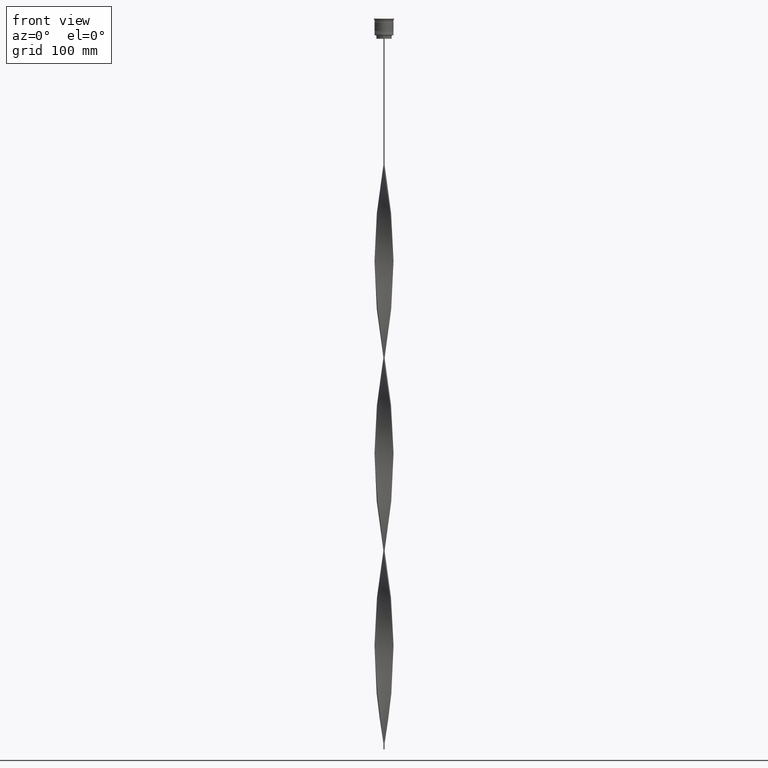
[diagram: clean part render]
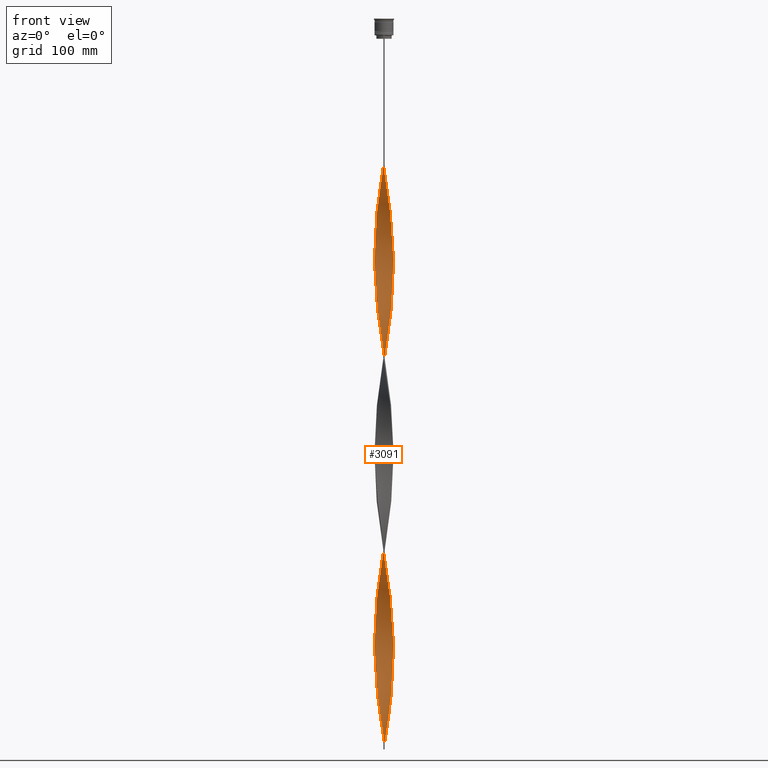
[diagram: same view with one face highlighted and labeled with its STEP entity id]
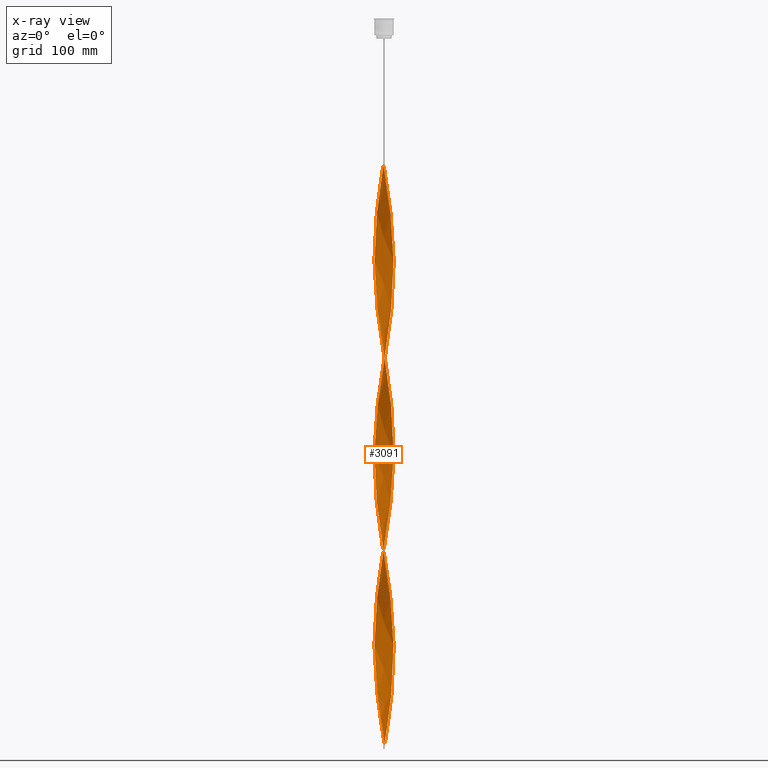
[diagram: x-ray of the same camera — body ghosted, the highlighted face saturated]
A machine part, front view. The second image highlights one B-rep face of the part: STEP entity #3091.
The next image is the same camera in x-ray: the body ghosted, the highlighted face saturated — about 0% of this face is hidden behind the body in this view.
In plain terms, the highlighted face is a freeform B-spline surface patch.
Its self-contained STEP definition (entity closure, byte-faithful):
#3 = CARTESIAN_POINT ( 'NONE',  ( -2.000555335823857028, 7.778309344253831803, -301.2000000000001023 ) ) ;
#14 = CARTESIAN_POINT ( 'NONE',  ( 5.111892533718798148, 6.174022572335636561, -408.1200000000000614 ) ) ;
#19 = CARTESIAN_POINT ( 'NONE',  ( -3.415876052791793072, 7.251330277401769386, -310.9199999999999591 ) ) ;
#26 = CARTESIAN_POINT ( 'NONE',  ( 1.009899697685192832, -7.967711120969127592, -456.7200000000000841 ) ) ;
#29 = CARTESIAN_POINT ( 'NONE',  ( -8.015400789812517246, 0.5076101705763133021, -197.5200000000000387 ) ) ;
#34 = CARTESIAN_POINT ( 'NONE',  ( 7.637344718665181276, -2.485011781637410877, -346.5599999999999454 ) ) ;
#40 = CARTESIAN_POINT ( 'NONE',  ( 5.106790515527261931, 6.178243328853344707, -252.6000000000000512 ) ) ;
#47 = CARTESIAN_POINT ( 'NONE',  ( -7.639394946319404411, 2.478701829738566342, -353.0400000000000205 ) ) ;
#50 = CARTESIAN_POINT ( 'NONE',  ( -4.297773521152310039, -6.766028581145813625, -252.6000000000000512 ) ) ;
#57 = CARTESIAN_POINT ( 'NONE',  ( 4.718088392280368915, -6.499535354871832205, -314.1599999999999682 ) ) ;
#64 = CARTESIAN_POINT ( 'NONE',  ( 7.762960627548705084, 1.996607696852005009, -220.2000000000000171 ) ) ;
#71 = CARTESIAN_POINT ( 'NONE',  ( -1.498723219171669507, -7.874250993733674875, -440.5200000000000387 ) ) ;
#73 = CARTESIAN_POINT ( 'NONE',  ( -5.111892533718799925, -6.174022572335634784, -246.1200000000000045 ) ) ;
#79 = CARTESIAN_POINT ( 'NONE',  ( -5.495492638774146954, 5.856951302834847439, -482.6400000000001000 ) ) ;
#85 = CARTESIAN_POINT ( 'NONE',  ( 1.498723219171672172, 7.874250993733674875, -278.5199999999999818 ) ) ;
#92 = CARTESIAN_POINT ( 'NONE',  ( 6.190458785190118718, -5.116887524214525307, -495.6000000000000227 ) ) ;
#96 = CARTESIAN_POINT ( 'NONE',  ( 7.268492320028107301, 3.416626596555745632, -385.4399999999999977 ) ) ;
#102 = CARTESIAN_POINT ( 'NONE',  ( -7.764607348536642917, -1.990194142050142334, -537.7200000000000273 ) ) ;
#106 = CARTESIAN_POINT ( 'NONE',  ( 7.951988663122374845, 1.007906891321455056, -213.7200000000000273 ) ) ;
#112 = CARTESIAN_POINT ( 'NONE',  ( 5.111892533718807030, -6.174022572335639225, -485.8800000000000523 ) ) ;
#118 = CARTESIAN_POINT ( 'NONE',  ( 8.015609087190826543, -0.003310792020369719701, -362.7600000000000477 ) ) ;
#134 = CARTESIAN_POINT ( 'NONE',  ( 5.845393947331972484, -5.484648539377413812, -492.3600000000000136 ) ) ;
#145 = CARTESIAN_POINT ( 'NONE',  ( -7.951988663122369516, 1.007906891321451281, -518.2800000000000864 ) ) ;
#154 = CARTESIAN_POINT ( 'NONE',  ( 7.952818567661520177, -1.001337520448642326, -524.7599999999999909 ) ) ;
#160 = CARTESIAN_POINT ( 'NONE',  ( 7.022536801505621540, 3.864450397080969601, -557.1600000000000819 ) ) ;
#163 = CARTESIAN_POINT ( 'NONE',  ( -7.952818567661513960, -1.001337520448642771, -531.2400000000000091 ) ) ;
#167 = CARTESIAN_POINT ( 'NONE',  ( -2.480108178533294794, -7.622274163448348183, -589.5600000000000591 ) ) ;
#172 = CARTESIAN_POINT ( 'NONE',  ( 7.451506065510694832, 2.953820806287573930, -550.6800000000000637 ) ) ;
#188 = CARTESIAN_POINT ( 'NONE',  ( -3.415876052791788187, -7.251330277401763169, -583.0800000000000409 ) ) ;
#194 = CARTESIAN_POINT ( 'NONE',  ( 0.003317338029198458726, -8.031457333626828898, -450.2400000000000659 ) ) ;
#206 = CARTESIAN_POINT ( 'NONE',  ( -7.022536801505616211, 3.864450397080963384, -498.8400000000000318 ) ) ;
#216 = CARTESIAN_POINT ( 'NONE',  ( 2.959661021242745438, -7.466238982642876110, -469.6800000000001205 ) ) ;
#223 = CARTESIAN_POINT ( 'NONE',  ( -4.297773521152310039, -6.766028581145813625, -576.6000000000000227 ) ) ;
#234 = CARTESIAN_POINT ( 'NONE',  ( -6.186229683506279109, 5.121999629979041124, -165.1200000000000330 ) ) ;
#243 = CARTESIAN_POINT ( 'NONE',  ( -0.003317338029198242319, 8.031457333626830675, -288.2400000000001228 ) ) ;
#254 = CARTESIAN_POINT ( 'NONE',  ( 1.498723219171672172, 7.874250993733674875, -602.5200000000000955 ) ) ;
#266 = CARTESIAN_POINT ( 'NONE',  ( 6.782961227863133935, -4.300669120951440050, -178.0800000000000125 ) ) ;
#278 = CARTESIAN_POINT ( 'NONE',  ( -6.482817937080656456, 4.714135296601620340, -168.3600000000000136 ) ) ;
#284 = CARTESIAN_POINT ( 'NONE',  ( 3.872091084340840705, -7.036421572160664439, -152.1599999999999966 ) ) ;
#289 = CARTESIAN_POINT ( 'NONE',  ( 7.022536801505621540, 3.864450397080969601, -233.1599999999999966 ) ) ;
#293 = CARTESIAN_POINT ( 'NONE',  ( -5.495492638774146954, 5.856951302834847439, -158.6400000000000148 ) ) ;
#298 = CARTESIAN_POINT ( 'NONE',  ( -5.845393947331967155, -5.484648539377411147, -239.6400000000000148 ) ) ;
#302 = CARTESIAN_POINT ( 'NONE',  ( 2.480108178533299679, -7.622274163448352624, -142.4399999999999977 ) ) ;
#310 = CARTESIAN_POINT ( 'NONE',  ( 3.415876052791792628, -7.251330277401769386, -148.9199999999999875 ) ) ;
#319 = CARTESIAN_POINT ( 'NONE',  ( 0.5000000000000025535, -7.999999999999996447, -285.0000000000000568 ) ) ;
#325 = CARTESIAN_POINT ( 'NONE',  ( 5.500329109473828026, -5.852409554540304981, -165.1200000000000330 ) ) ;
#333 = CARTESIAN_POINT ( 'NONE',  ( -1.009899697685193942, 7.967711120969127592, -294.7199999999999704 ) ) ;
#346 = CARTESIAN_POINT ( 'NONE',  ( 6.486710006526618777, 4.708778322582979570, -395.1600000000000250 ) ) ;
#351 = CARTESIAN_POINT ( 'NONE',  ( 7.268492320028115294, -3.416626596555745188, -184.5600000000000307 ) ) ;
#358 = CARTESIAN_POINT ( 'NONE',  ( -7.022536801505621540, -3.864450397080968713, -395.1600000000000250 ) ) ;
#366 = CARTESIAN_POINT ( 'NONE',  ( -1.994129100314146807, 7.779959321094164437, -456.7200000000000841 ) ) ;
#371 = CARTESIAN_POINT ( 'NONE',  ( -7.639394946319404411, 2.478701829738565898, -353.0400000000000205 ) ) ;
#375 = CARTESIAN_POINT ( 'NONE',  ( -7.025726773945625503, 3.858647858753588622, -343.3199999999999932 ) ) ;
#378 = CARTESIAN_POINT ( 'NONE',  ( 7.453943633173752303, 2.947664213147153767, -382.2000000000000455 ) ) ;
#385 = CARTESIAN_POINT ( 'NONE',  ( 7.762960627548698866, -1.996607696852002345, -349.8000000000000114 ) ) ;
#391 = CARTESIAN_POINT ( 'NONE',  ( 7.637344718665186605, 2.485011781637414874, -223.4399999999999977 ) ) ;
#396 = CARTESIAN_POINT ( 'NONE',  ( -5.840861161140214364, -5.489475466406953608, -408.1200000000000614 ) ) ;
#400 = CARTESIAN_POINT ( 'NONE',  ( 2.000555335823847702, 7.778309344253826474, -430.8000000000000682 ) ) ;
#408 = CARTESIAN_POINT ( 'NONE',  ( -3.866277073390937957, 7.039617851728262821, -469.6800000000001205 ) ) ;
#413 = CARTESIAN_POINT ( 'NONE',  ( -0.5066085178571957393, 7.999584227297980021, -291.4800000000000182 ) ) ;
#416 = EDGE_CURVE ( 'NONE', #2297, #3438, #2717, .T. ) ;
#422 = CARTESIAN_POINT ( 'NONE',  ( 7.764607348536651799, -1.990194142050141002, -518.2800000000000864 ) ) ;
#425 = ORIENTED_EDGE ( 'NONE', *, *, #4239, .F. ) ;
#427 = CARTESIAN_POINT ( 'NONE',  ( 7.764607348536642029, 1.990194142050144555, -375.7199999999999704 ) ) ;
#433 = CARTESIAN_POINT ( 'NONE',  ( 4.723455957963781593, 6.495635590130970805, -411.3600000000000705 ) ) ;
#437 = CARTESIAN_POINT ( 'NONE',  ( -7.889819750753897409, 1.501686454361711220, -359.5200000000000955 ) ) ;
#445 = CARTESIAN_POINT ( 'NONE',  ( -1.994129100314148806, -7.779959321094168878, -437.2800000000000296 ) ) ;
#450 = CARTESIAN_POINT ( 'NONE',  ( 4.292182732835652992, -6.769576603300047957, -310.9199999999999591 ) ) ;
#460 = CARTESIAN_POINT ( 'NONE',  ( 1.505227516754523709, -7.873010232611480141, -459.9600000000000364 ) ) ;
#468 = CARTESIAN_POINT ( 'NONE',  ( 0.5000000000000025535, -7.999999999999996447, -609.0000000000000000 ) ) ;
#471 = CARTESIAN_POINT ( 'NONE',  ( 6.782961227863125941, 4.300669120951440050, -391.9200000000001296 ) ) ;
#479 = CARTESIAN_POINT ( 'NONE',  ( -7.025726773945617509, -3.858647858753589510, -550.6800000000000637 ) ) ;
#486 = CARTESIAN_POINT ( 'NONE',  ( 7.453943633173757632, -2.947664213147156875, -511.8000000000000114 ) ) ;
#492 = CARTESIAN_POINT ( 'NONE',  ( 1.994129100314147918, 7.779959321094169766, -599.2800000000000864 ) ) ;
#496 = CARTESIAN_POINT ( 'NONE',  ( 0.4999999999999972800, 8.000000000000003553, -609.0000000000000000 ) ) ;
#497 = CARTESIAN_POINT ( 'NONE',  ( -3.415876052791788187, -7.251330277401763169, -583.0800000000000409 ) ) ;
#507 = CARTESIAN_POINT ( 'NONE',  ( 7.025726773945623727, -3.858647858753592175, -505.3199999999999932 ) ) ;
#516 = CARTESIAN_POINT ( 'NONE',  ( -2.000555335823850367, -7.778309344253826474, -592.8000000000000682 ) ) ;
#525 = CARTESIAN_POINT ( 'NONE',  ( 4.718088392280371579, 6.499535354871838422, -579.8400000000001455 ) ) ;
#537 = CARTESIAN_POINT ( 'NONE',  ( -2.953492255452158766, 7.468681369799075043, -463.2000000000000455 ) ) ;
#545 = CARTESIAN_POINT ( 'NONE',  ( -7.888576536432217345, 1.508203612066590482, -515.0400000000001910 ) ) ;
#551 = CARTESIAN_POINT ( 'NONE',  ( 4.292182732835655656, 6.769576603300054174, -583.0800000000000409 ) ) ;
#564 = CARTESIAN_POINT ( 'NONE',  ( 0.003317338029198459159, -8.031457333626830675, -126.2400000000000233 ) ) ;
#575 = CARTESIAN_POINT ( 'NONE',  ( 1.498723219171672616, -7.874250993733667769, -291.4800000000000182 ) ) ;
#585 = CARTESIAN_POINT ( 'NONE',  ( -5.845393947331967155, -5.484648539377411147, -563.6399999999999864 ) ) ;
#596 = CARTESIAN_POINT ( 'NONE',  ( -8.015609087190826543, 0.003310792020370478643, -200.7599999999999909 ) ) ;
#607 = CARTESIAN_POINT ( 'NONE',  ( 1.498723219171672172, 7.874250993733674875, -278.5199999999999818 ) ) ;
#609 = CARTESIAN_POINT ( 'NONE',  ( -1.003317338029197980, 7.968542666373173766, -126.2400000000000233 ) ) ;
#618 = CARTESIAN_POINT ( 'NONE',  ( -1.994129100314146807, 7.779959321094164437, -132.7199999999999989 ) ) ;
#619 = EDGE_CURVE ( 'NONE', #3181, #2248, #1313, .T. ) ;
#621 = DIRECTION ( 'NONE',  ( 0.000000000000000000, 1.000000000000000000, 0.000000000000000000 ) ) ;
#631 = CARTESIAN_POINT ( 'NONE',  ( 5.840861161140217028, 5.489475466406951831, -246.1200000000000045 ) ) ;
#636 = CARTESIAN_POINT ( 'NONE',  ( -5.840861161140213476, 5.489475466406945614, -161.8799999999999955 ) ) ;
#643 = CARTESIAN_POINT ( 'NONE',  ( -7.268492320028109077, -3.416626596555743411, -223.4399999999999977 ) ) ;
#648 = CARTESIAN_POINT ( 'NONE',  ( 1.009899697685192832, -7.967711120969127592, -132.7199999999999989 ) ) ;
#653 = CARTESIAN_POINT ( 'NONE',  ( 3.872091084340840705, -7.036421572160664439, -152.1599999999999966 ) ) ;
#662 = CARTESIAN_POINT ( 'NONE',  ( -1.505227516754522377, -7.873010232611473036, -272.0400000000000205 ) ) ;
#669 = FACE_OUTER_BOUND ( 'NONE', #2828, .T. ) ;
#674 = CARTESIAN_POINT ( 'NONE',  ( 3.409884664421549250, 7.254149610763675149, -265.5600000000000023 ) ) ;
#677 = CARTESIAN_POINT ( 'NONE',  ( -7.025726773945617509, -3.858647858753589510, -226.6800000000000068 ) ) ;
#683 = CARTESIAN_POINT ( 'NONE',  ( -0.4999999999999998890, 7.999999999999996447, -447.0000000000000000 ) ) ;
#690 = CARTESIAN_POINT ( 'NONE',  ( -4.297773521152315368, 6.766028581145817178, -317.4000000000000341 ) ) ;
#696 = CARTESIAN_POINT ( 'NONE',  ( 2.959661021242744994, -7.466238982642876998, -145.6800000000000352 ) ) ;
#700 = CARTESIAN_POINT ( 'NONE',  ( -4.292182732835652992, 6.769576603300047957, -148.9199999999999875 ) ) ;
#709 = CARTESIAN_POINT ( 'NONE',  ( 3.409884664421550582, -7.254149610763668043, -304.4400000000000546 ) ) ;
#714 = CARTESIAN_POINT ( 'NONE',  ( -0.003317338029198241885, 8.031457333626828898, -288.2400000000001796 ) ) ;
#720 = CARTESIAN_POINT ( 'NONE',  ( -7.764607348536651799, 1.990194142050141890, -356.2800000000000296 ) ) ;
#726 = CARTESIAN_POINT ( 'NONE',  ( 7.888576536432219122, -1.508203612066588484, -353.0400000000000205 ) ) ;
#732 = CARTESIAN_POINT ( 'NONE',  ( 8.015817384569137616, 0.5009885865355696577, -365.9999999999999432 ) ) ;
#735 = CARTESIAN_POINT ( 'NONE',  ( -5.500329109473828026, 5.852409554540304981, -327.1200000000001182 ) ) ;
#741 = CARTESIAN_POINT ( 'NONE',  ( -5.106790515527257490, -6.178243328853349148, -414.6000000000000227 ) ) ;
#743 =( BOUNDED_SURFACE ( )  B_SPLINE_SURFACE ( 1, 2, ( 
 ( #3378, #4423, #1642, #648, #3400, #1348, #302, #1325, #1679, #284, #2695, #3058, #3420, #325, #3081, #2068, #1102, #1461, #3123, #351, #1483, #2516, #3443, #3170, #3827, #4192, #1411, #756, #106, #2470, #64, #391, #1392, #3482, #1769, #2762, #3101, #3847, #1062, #4143, #40, #2424, #2131, #3806, #4241, #3193, #2831, #2493, #85, #3505, #2858, #714, #413, #1795, #1728, #4214, #1121, #2786, #19, #1148, #690, #2086, #3872, #735, #782, #4168, #2156, #3462, #3532, #1438, #3148, #371, #2810, #437, #1746, #1085, #1816, #2447, #2108, #1862, #2886, #1219, #1510, #2968, #1927, #1576, #1241, #1899, #878, #1594, #2540, #2925, #2176, #4266, #3551, #3601, #3922, #1172, #3311, #3647, #4347, #194, #3896, #1879, #460, #2609, #4305, #216, #2266, #1256, #1838, #828, #3218, #3973, #134, #805, #2950, #2199, #507, #3578, #486, #855, #3244, #2565, #154, #1532, #4284, #2226, #2907, #1193, #3264, #3944, #172, #1551, #4329, #2593, #3992, #901, #2247, #3287, #3623, #525, #551, #1967, #988, #2354, #1698, #1341, #254, #1633, #3372 ),
 ( #1655, #2627, #1297, #618, #4009, #3075, #3346, #1988, #3013, #943, #4419, #3691, #3709, #234, #278, #4074, #2013, #3035, #1320, #2690, #4034, #2668, #4394, #2310, #596, #2715, #4054, #965, #3736, #4367, #1611, #643, #2651, #2331, #3393, #918, #298, #1675, #2289, #4466, #3054, #4439, #4101, #1012, #2377, #3755, #662, #2986, #2040, #3415, #319, #3671, #575, #1949, #3328, #1275, #709, #1056, #2418, #57, #2736, #1761, #2124, #3799, #1030, #2150, #3189, #4122, #3841, #34, #385, #2083, #1433, #776, #3141, #732, #1082, #2062, #4160, #2442, #3437, #3776, #2805, #1724, #346, #3458, #3095, #4186, #14, #433, #3865, #3498, #3166, #751, #1098, #3525, #1386, #2463, #2397, #2756, #683, #3823, #4139, #366, #1811, #1117, #1365, #408, #1741, #2102, #3116, #79, #1789, #1406, #4209, #2779, #3476, #1455, #2826, #2489, #1141, #545, #2241, #2849, #1189, #1477, #4261, #1527, #102, #3240, #4233, #3917, #479, #2902, #2262, #895, #4280, #2172, #2605, #3988, #3616, #2512, #188, #1570, #167, #3967, #1547, #2922, #4300, #823, #1212 ) ),
 .UNSPECIFIED., .F., .F., .F. ) 
 B_SPLINE_SURFACE_WITH_KNOTS ( ( 2, 2 ),
 ( 3, 2, 2, 2, 2, 2, 2, 2, 2, 2, 2, 2, 2, 2, 2, 2, 2, 2, 2, 2, 2, 2, 2, 2, 2, 2, 2, 2, 2, 2, 2, 2, 2, 2, 2, 2, 2, 2, 2, 2, 2, 2, 2, 2, 2, 2, 2, 2, 2, 2, 2, 2, 2, 2, 2, 2, 2, 2, 2, 2, 2, 2, 2, 2, 2, 2, 2, 2, 2, 2, 2, 2, 2, 2, 2, 3 ),
 ( 0.000000000000000000, 1.000000000000000000 ),
 ( 0.000000000000000000, 0.01000000000000000021, 0.02000000000000000042, 0.02999999999999999889, 0.04000000000000000083, 0.05000000000000000278, 0.05999999999999999778, 0.07000000000000000666, 0.08000000000000000167, 0.08999999999999999667, 0.1000000000000000056, 0.1100000000000000006, 0.1199999999999999956, 0.1300000000000000044, 0.1400000000000000133, 0.1499999999999999944, 0.1600000000000000033, 0.1700000000000000122, 0.1799999999999999933, 0.1900000000000000022, 0.2000000000000000111, 0.2099999999999999922, 0.2200000000000000011, 0.2300000000000000100, 0.2399999999999999911, 0.2500000000000000000, 0.2600000000000000089, 0.2700000000000000178, 0.2800000000000000266, 0.2899999999999999800, 0.2999999999999999889, 0.3099999999999999978, 0.3200000000000000067, 0.3300000000000000155, 0.3400000000000000244, 0.3499999999999999778, 0.3599999999999999867, 0.3699999999999999956, 0.3800000000000000044, 0.3900000000000000133, 0.4000000000000000222, 0.4099999999999999756, 0.4199999999999999845, 0.4299999999999999933, 0.4400000000000000022, 0.4500000000000000111, 0.4600000000000000200, 0.4699999999999999734, 0.4799999999999999822, 0.4899999999999999911, 0.5000000000000000000, 0.5100000000000000089, 0.5200000000000000178, 0.5300000000000000266, 0.5400000000000000355, 0.5500000000000000444, 0.5600000000000000533, 0.5699999999999999512, 0.5799999999999999600, 0.5899999999999999689, 0.5999999999999999778, 0.6099999999999999867, 0.6199999999999999956, 0.6300000000000000044, 0.6400000000000000133, 0.6500000000000000222, 0.6600000000000000311, 0.6700000000000000400, 0.6800000000000000488, 0.6899999999999999467, 0.6999999999999999556, 0.7099999999999999645, 0.7199999999999999734, 0.7299999999999999822, 0.7399999999999999911, 0.7500000000000000000 ),
 .UNSPECIFIED. ) 
 GEOMETRIC_REPRESENTATION_ITEM ( )  RATIONAL_B_SPLINE_SURFACE ( (
 ( 1.000000000000000000, 0.9980267284282715590, 1.000000000000000000, 0.9980267284282715590, 1.000000000000000000, 0.9980267284282715590, 1.000000000000000000, 0.9980267284282715590, 1.000000000000000000, 0.9980267284282715590, 1.000000000000000000, 0.9980267284282715590, 1.000000000000000000, 0.9980267284282715590, 1.000000000000000000, 0.9980267284282715590, 1.000000000000000000, 0.9980267284282715590, 1.000000000000000000, 0.9980267284282715590, 1.000000000000000000, 0.9980267284282715590, 1.000000000000000000, 0.9980267284282715590, 1.000000000000000000, 0.9980267284282715590, 1.000000000000000000, 0.9980267284282715590, 1.000000000000000000, 0.9980267284282715590, 1.000000000000000000, 0.9980267284282715590, 1.000000000000000000, 0.9980267284282715590, 1.000000000000000000, 0.9980267284282715590, 1.000000000000000000, 0.9980267284282715590, 1.000000000000000000, 0.9980267284282715590, 1.000000000000000000, 0.9980267284282715590, 1.000000000000000000, 0.9980267284282715590, 1.000000000000000000, 0.9980267284282715590, 1.000000000000000000, 0.9980267284282715590, 1.000000000000000000, 0.9980267284282715590, 1.000000000000000000, 0.9980267284282715590, 1.000000000000000000, 0.9980267284282715590, 1.000000000000000000, 0.9980267284282715590, 1.000000000000000000, 0.9980267284282715590, 1.000000000000000000, 0.9980267284282715590, 1.000000000000000000, 0.9980267284282715590, 1.000000000000000000, 0.9980267284282715590, 1.000000000000000000, 0.9980267284282715590, 1.000000000000000000, 0.9980267284282715590, 1.000000000000000000, 0.9980267284282715590, 1.000000000000000000, 0.9980267284282715590, 1.000000000000000000, 0.9980267284282715590, 1.000000000000000000, 0.9980267284282715590, 1.000000000000000000, 0.9980267284282715590, 1.000000000000000000, 0.9980267284282715590, 1.000000000000000000, 0.9980267284282715590, 1.000000000000000000, 0.9980267284282715590, 1.000000000000000000, 0.9980267284282715590, 1.000000000000000000, 0.9980267284282715590, 1.000000000000000000, 0.9980267284282715590, 1.000000000000000000, 0.9980267284282715590, 1.000000000000000000, 0.9980267284282715590, 1.000000000000000000, 0.9980267284282715590, 1.000000000000000000, 0.9980267284282715590, 1.000000000000000000, 0.9980267284282715590, 1.000000000000000000, 0.9980267284282715590, 1.000000000000000000, 0.9980267284282715590, 1.000000000000000000, 0.9980267284282715590, 1.000000000000000000, 0.9980267284282715590, 1.000000000000000000, 0.9980267284282715590, 1.000000000000000000, 0.9980267284282715590, 1.000000000000000000, 0.9980267284282715590, 1.000000000000000000, 0.9980267284282715590, 1.000000000000000000, 0.9980267284282715590, 1.000000000000000000, 0.9980267284282715590, 1.000000000000000000, 0.9980267284282715590, 1.000000000000000000, 0.9980267284282715590, 1.000000000000000000, 0.9980267284282715590, 1.000000000000000000, 0.9980267284282715590, 1.000000000000000000, 0.9980267284282715590, 1.000000000000000000, 0.9980267284282715590, 1.000000000000000000, 0.9980267284282715590, 1.000000000000000000, 0.9980267284282715590, 1.000000000000000000, 0.9980267284282715590, 1.000000000000000000, 0.9980267284282715590, 1.000000000000000000, 0.9980267284282715590, 1.000000000000000000, 0.9980267284282715590, 1.000000000000000000, 0.9980267284282715590, 1.000000000000000000, 0.9980267284282715590, 1.000000000000000000, 0.9980267284282715590, 1.000000000000000000),
 ( 1.000000000000000000, 0.9980267284282715590, 1.000000000000000000, 0.9980267284282715590, 1.000000000000000000, 0.9980267284282715590, 1.000000000000000000, 0.9980267284282715590, 1.000000000000000000, 0.9980267284282715590, 1.000000000000000000, 0.9980267284282715590, 1.000000000000000000, 0.9980267284282715590, 1.000000000000000000, 0.9980267284282715590, 1.000000000000000000, 0.9980267284282715590, 1.000000000000000000, 0.9980267284282715590, 1.000000000000000000, 0.9980267284282715590, 1.000000000000000000, 0.9980267284282715590, 1.000000000000000000, 0.9980267284282715590, 1.000000000000000000, 0.9980267284282715590, 1.000000000000000000, 0.9980267284282715590, 1.000000000000000000, 0.9980267284282715590, 1.000000000000000000, 0.9980267284282715590, 1.000000000000000000, 0.9980267284282715590, 1.000000000000000000, 0.9980267284282715590, 1.000000000000000000, 0.9980267284282715590, 1.000000000000000000, 0.9980267284282715590, 1.000000000000000000, 0.9980267284282715590, 1.000000000000000000, 0.9980267284282715590, 1.000000000000000000, 0.9980267284282715590, 1.000000000000000000, 0.9980267284282715590, 1.000000000000000000, 0.9980267284282715590, 1.000000000000000000, 0.9980267284282715590, 1.000000000000000000, 0.9980267284282715590, 1.000000000000000000, 0.9980267284282715590, 1.000000000000000000, 0.9980267284282715590, 1.000000000000000000, 0.9980267284282715590, 1.000000000000000000, 0.9980267284282715590, 1.000000000000000000, 0.9980267284282715590, 1.000000000000000000, 0.9980267284282715590, 1.000000000000000000, 0.9980267284282715590, 1.000000000000000000, 0.9980267284282715590, 1.000000000000000000, 0.9980267284282715590, 1.000000000000000000, 0.9980267284282715590, 1.000000000000000000, 0.9980267284282715590, 1.000000000000000000, 0.9980267284282715590, 1.000000000000000000, 0.9980267284282715590, 1.000000000000000000, 0.9980267284282715590, 1.000000000000000000, 0.9980267284282715590, 1.000000000000000000, 0.9980267284282715590, 1.000000000000000000, 0.9980267284282715590, 1.000000000000000000, 0.9980267284282715590, 1.000000000000000000, 0.9980267284282715590, 1.000000000000000000, 0.9980267284282715590, 1.000000000000000000, 0.9980267284282715590, 1.000000000000000000, 0.9980267284282715590, 1.000000000000000000, 0.9980267284282715590, 1.000000000000000000, 0.9980267284282715590, 1.000000000000000000, 0.9980267284282715590, 1.000000000000000000, 0.9980267284282715590, 1.000000000000000000, 0.9980267284282715590, 1.000000000000000000, 0.9980267284282715590, 1.000000000000000000, 0.9980267284282715590, 1.000000000000000000, 0.9980267284282715590, 1.000000000000000000, 0.9980267284282715590, 1.000000000000000000, 0.9980267284282715590, 1.000000000000000000, 0.9980267284282715590, 1.000000000000000000, 0.9980267284282715590, 1.000000000000000000, 0.9980267284282715590, 1.000000000000000000, 0.9980267284282715590, 1.000000000000000000, 0.9980267284282715590, 1.000000000000000000, 0.9980267284282715590, 1.000000000000000000, 0.9980267284282715590, 1.000000000000000000, 0.9980267284282715590, 1.000000000000000000, 0.9980267284282715590, 1.000000000000000000, 0.9980267284282715590, 1.000000000000000000, 0.9980267284282715590, 1.000000000000000000, 0.9980267284282715590, 1.000000000000000000, 0.9980267284282715590, 1.000000000000000000, 0.9980267284282715590, 1.000000000000000000, 0.9980267284282715590, 1.000000000000000000) ) ) 
 REPRESENTATION_ITEM ( '' )  SURFACE ( )  );
#745 = CARTESIAN_POINT ( 'NONE',  ( -0.003317338029196073915, -8.031457333626823569, -281.7599999999999909 ) ) ;
#751 = CARTESIAN_POINT ( 'NONE',  ( 2.959661021242737888, 7.466238982642869892, -424.3200000000000500 ) ) ;
#756 = CARTESIAN_POINT ( 'NONE',  ( 8.015400789812524351, 0.5076101705763151895, -210.4800000000000182 ) ) ;
#763 = CARTESIAN_POINT ( 'NONE',  ( -2.473810677883152120, -7.624320345446626845, -434.0400000000000205 ) ) ;
#768 = CARTESIAN_POINT ( 'NONE',  ( 7.952818567661513960, 1.001337520448645213, -369.2400000000000091 ) ) ;
#776 = CARTESIAN_POINT ( 'NONE',  ( 8.015400789812517246, -0.5076101705763091942, -359.5200000000000955 ) ) ;
#782 = CARTESIAN_POINT ( 'NONE',  ( -5.845393947331973372, 5.484648539377412924, -330.3600000000000136 ) ) ;
#790 = CARTESIAN_POINT ( 'NONE',  ( -0.4999999999999998890, -8.000000000000003553, -447.0000000000000000 ) ) ;
#794 = CARTESIAN_POINT ( 'NONE',  ( 3.872091084340834488, 7.036421572160659110, -417.8400000000000887 ) ) ;
#805 = CARTESIAN_POINT ( 'NONE',  ( 6.190458785190118718, -5.116887524214525307, -495.6000000000000227 ) ) ;
#814 = CARTESIAN_POINT ( 'NONE',  ( 1.003317338029196426, 7.968542666373180872, -605.7600000000001046 ) ) ;
#818 = CARTESIAN_POINT ( 'NONE',  ( 3.866277073390937957, -7.039617851728263709, -307.6800000000000637 ) ) ;
#823 = CARTESIAN_POINT ( 'NONE',  ( -0.003317338029196073481, -8.031457333626821793, -605.7599999999999909 ) ) ;
#828 = CARTESIAN_POINT ( 'NONE',  ( 4.723455957963786922, -6.495635590130975245, -482.6400000000001000 ) ) ;
#836 = CARTESIAN_POINT ( 'NONE',  ( 5.495492638774149619, 5.856951302834855433, -573.3600000000001273 ) ) ;
#855 = CARTESIAN_POINT ( 'NONE',  ( 7.639394946319403523, -2.478701829738568119, -515.0400000000001910 ) ) ;
#866 = CARTESIAN_POINT ( 'NONE',  ( -6.779406190655034692, 4.306270963224198667, -495.6000000000000227 ) ) ;
#878 = CARTESIAN_POINT ( 'NONE',  ( -5.840861161140214364, -5.489475466406953608, -408.1200000000000614 ) ) ;
#888 = CARTESIAN_POINT ( 'NONE',  ( -6.190458785190113389, -5.116887524214520866, -560.3999999999999773 ) ) ;
#895 = CARTESIAN_POINT ( 'NONE',  ( -6.190458785190113389, -5.116887524214521754, -560.3999999999999773 ) ) ;
#901 = CARTESIAN_POINT ( 'NONE',  ( 6.186229683506283550, 5.121999629979047342, -566.8799999999999955 ) ) ;
#908 = CARTESIAN_POINT ( 'NONE',  ( 0.003317338029197050130, 8.031457333626823569, -443.7600000000000477 ) ) ;
#918 = CARTESIAN_POINT ( 'NONE',  ( -6.190458785190113389, -5.116887524214521754, -236.4000000000000341 ) ) ;
#933 = CARTESIAN_POINT ( 'NONE',  ( -4.718088392280368026, 6.499535354871833093, -476.1600000000000250 ) ) ;
#943 = CARTESIAN_POINT ( 'NONE',  ( -4.718088392280368026, 6.499535354871833093, -152.1599999999999966 ) ) ;
#953 = CARTESIAN_POINT ( 'NONE',  ( 4.292182732835655656, 6.769576603300054174, -259.0799999999999841 ) ) ;
#965 = CARTESIAN_POINT ( 'NONE',  ( -7.889819750753890304, -1.501686454361715661, -210.4800000000000182 ) ) ;
#967 = CARTESIAN_POINT ( 'NONE',  ( -0.4999999999999998890, -8.000000000000003553, -123.0000000000000000 ) ) ;
#975 = CARTESIAN_POINT ( 'NONE',  ( 7.268492320028114406, -3.416626596555745188, -184.5600000000000307 ) ) ;
#988 = CARTESIAN_POINT ( 'NONE',  ( 3.409884664421549250, 7.254149610763675149, -589.5600000000000591 ) ) ;
#999 = CARTESIAN_POINT ( 'NONE',  ( 4.723455957963786922, -6.495635590130975245, -158.6400000000000148 ) ) ;
#1012 = CARTESIAN_POINT ( 'NONE',  ( -2.959661021242740553, -7.466238982642869004, -262.3199999999999932 ) ) ;
#1022 = CARTESIAN_POINT ( 'NONE',  ( 7.639394946319403523, -2.478701829738568563, -191.0400000000000205 ) ) ;
#1025 = CARTESIAN_POINT ( 'NONE',  ( -7.639394946319396418, -2.478701829738567675, -216.9600000000000080 ) ) ;
#1030 = CARTESIAN_POINT ( 'NONE',  ( 6.482817937080657344, -4.714135296601619451, -330.3600000000000136 ) ) ;
#1046 = CARTESIAN_POINT ( 'NONE',  ( 7.951988663122374845, 1.007906891321455056, -213.7200000000000273 ) ) ;
#1049 = CARTESIAN_POINT ( 'NONE',  ( -2.473810677883152565, 7.624320345446617964, -135.9600000000000080 ) ) ;
#1053 = CARTESIAN_POINT ( 'NONE',  ( -0.4999999999999998890, -8.000000000000003553, -123.0000000000000000 ) ) ;
#1056 = CARTESIAN_POINT ( 'NONE',  ( 3.866277073390937513, -7.039617851728263709, -307.6800000000000637 ) ) ;
#1062 = CARTESIAN_POINT ( 'NONE',  ( 5.840861161140217028, 5.489475466406951831, -246.1200000000000045 ) ) ;
#1071 = CARTESIAN_POINT ( 'NONE',  ( 3.415876052791792628, -7.251330277401769386, -472.9200000000000159 ) ) ;
#1076 = CARTESIAN_POINT ( 'NONE',  ( -0.5066085178571934078, -7.999584227297972916, -278.5199999999999818 ) ) ;
#1082 = CARTESIAN_POINT ( 'NONE',  ( 7.952818567661513960, 1.001337520448645213, -369.2400000000000091 ) ) ;
#1085 = CARTESIAN_POINT ( 'NONE',  ( -8.015817384569144721, 0.5009885865355727663, -365.9999999999999432 ) ) ;
#1089 = CARTESIAN_POINT ( 'NONE',  ( -4.292182732835656545, -6.769576603300054174, -421.0799999999999841 ) ) ;
#1092 = CARTESIAN_POINT ( 'NONE',  ( -2.480108178533294794, -7.622274163448348183, -265.5600000000000023 ) ) ;
#1098 = CARTESIAN_POINT ( 'NONE',  ( 2.480108178533295682, 7.622274163448348183, -427.5600000000000023 ) ) ;
#1102 = CARTESIAN_POINT ( 'NONE',  ( 6.486710006526624994, -4.708778322582981346, -174.8400000000000034 ) ) ;
#1108 = CARTESIAN_POINT ( 'NONE',  ( 1.505227516754523709, -7.873010232611480141, -459.9600000000000364 ) ) ;
#1111 = CARTESIAN_POINT ( 'NONE',  ( 2.473810677883154341, -7.624320345446617964, -297.9599999999999795 ) ) ;
#1117 = CARTESIAN_POINT ( 'NONE',  ( -2.953492255452158766, 7.468681369799075043, -463.2000000000000455 ) ) ;
#1121 = CARTESIAN_POINT ( 'NONE',  ( -2.480108178533302343, 7.622274163448351736, -304.4400000000000546 ) ) ;
#1129 = CARTESIAN_POINT ( 'NONE',  ( -7.265667412356204835, -3.422629830937735207, -391.9200000000001296 ) ) ;
#1134 = CARTESIAN_POINT ( 'NONE',  ( 5.111892533718798148, 6.174022572335636561, -408.1200000000000614 ) ) ;
#1141 = CARTESIAN_POINT ( 'NONE',  ( -7.762960627548698866, 1.996607696852001457, -511.8000000000000114 ) ) ;
#1148 = CARTESIAN_POINT ( 'NONE',  ( -3.872091084340841594, 7.036421572160663551, -314.1599999999999682 ) ) ;
#1156 = CARTESIAN_POINT ( 'NONE',  ( 4.723455957963786922, -6.495635590130975245, -482.6400000000000432 ) ) ;
#1160 = CARTESIAN_POINT ( 'NONE',  ( 2.480108178533295682, 7.622274163448348183, -427.5600000000000023 ) ) ;
#1172 = CARTESIAN_POINT ( 'NONE',  ( -1.994129100314148584, -7.779959321094168878, -437.2800000000000864 ) ) ;
#1184 = CARTESIAN_POINT ( 'NONE',  ( -3.872091084340837153, -7.036421572160659110, -579.8400000000001455 ) ) ;
#1189 = CARTESIAN_POINT ( 'NONE',  ( -8.015609087190826543, 0.003310792020370478643, -524.7599999999999909 ) ) ;
#1193 = CARTESIAN_POINT ( 'NONE',  ( 7.888576536432224451, 1.508203612066593147, -540.9600000000001501 ) ) ;
#1200 = CARTESIAN_POINT ( 'NONE',  ( 5.840861161140217028, 5.489475466406951831, -570.1200000000000045 ) ) ;
#1204 = CARTESIAN_POINT ( 'NONE',  ( -1.498723219171672616, 7.874250993733667769, -453.4800000000000750 ) ) ;
#1212 = CARTESIAN_POINT ( 'NONE',  ( 0.5000000000000025535, -7.999999999999996447, -609.0000000000000000 ) ) ;
#1219 = CARTESIAN_POINT ( 'NONE',  ( -7.637344718665184828, -2.485011781637417094, -385.4399999999999977 ) ) ;
#1230 = CARTESIAN_POINT ( 'NONE',  ( -6.782961227863126830, -4.300669120951438273, -553.9200000000000728 ) ) ;
#1241 = CARTESIAN_POINT ( 'NONE',  ( -6.482817937080660009, -4.714135296601627445, -401.6399999999999864 ) ) ;
#1256 = CARTESIAN_POINT ( 'NONE',  ( 3.872091084340840705, -7.036421572160664439, -476.1600000000000250 ) ) ;
#1261 = CARTESIAN_POINT ( 'NONE',  ( 6.482817937080661785, 4.714135296601625669, -563.6399999999999864 ) ) ;
#1275 = CARTESIAN_POINT ( 'NONE',  ( 2.953492255452160986, -7.468681369799075043, -301.2000000000000455 ) ) ;
#1288 = CARTESIAN_POINT ( 'NONE',  ( 3.866277073390939290, 7.039617851728271702, -262.3199999999999932 ) ) ;
#1297 = CARTESIAN_POINT ( 'NONE',  ( -1.498723219171672616, 7.874250993733667769, -129.4800000000000182 ) ) ;
#1308 = CARTESIAN_POINT ( 'NONE',  ( 1.994129100314147918, 7.779959321094169766, -275.2799999999999727 ) ) ;
#1313 = B_SPLINE_CURVE_WITH_KNOTS ( 'NONE', 3,
 ( #496, #3182, #3561, #468 ),
 .UNSPECIFIED., .F., .F.,
 ( 4, 4 ),
 ( 0.000000000000000000, 1.000000000000000000 ),
 .UNSPECIFIED. ) ;
#1314 = CARTESIAN_POINT ( 'NONE',  ( -0.4999999999999998890, 7.999999999999996447, -123.0000000000000000 ) ) ;
#1320 = CARTESIAN_POINT ( 'NONE',  ( -7.451506065510689503, 2.953820806287569933, -181.3200000000000216 ) ) ;
#1325 = CARTESIAN_POINT ( 'NONE',  ( 2.959661021242745438, -7.466238982642876110, -145.6800000000000352 ) ) ;
#1331 = CARTESIAN_POINT ( 'NONE',  ( 6.190458785190118718, -5.116887524214525307, -171.6000000000000227 ) ) ;
#1334 = CARTESIAN_POINT ( 'NONE',  ( -7.022536801505616211, 3.864450397080963384, -174.8400000000000034 ) ) ;
#1341 = CARTESIAN_POINT ( 'NONE',  ( 1.994129100314147696, 7.779959321094169766, -599.2799999999999727 ) ) ;
#1348 = CARTESIAN_POINT ( 'NONE',  ( 2.000555335823854364, -7.778309344253831803, -139.1999999999999602 ) ) ;
#1352 = CARTESIAN_POINT ( 'NONE',  ( 7.764607348536651799, -1.990194142050141002, -194.2800000000000011 ) ) ;
#1358 = CARTESIAN_POINT ( 'NONE',  ( -1.498723219171672616, 7.874250993733667769, -129.4800000000000182 ) ) ;
#1365 = CARTESIAN_POINT ( 'NONE',  ( -3.409884664421547917, 7.254149610763668043, -466.4399999999999977 ) ) ;
#1375 = CARTESIAN_POINT ( 'NONE',  ( -0.5066085178571957393, 7.999584227297980021, -291.4800000000000182 ) ) ;
#1379 = CARTESIAN_POINT ( 'NONE',  ( -2.953492255452158766, 7.468681369799075043, -139.1999999999999886 ) ) ;
#1386 = CARTESIAN_POINT ( 'NONE',  ( 1.505227516754519712, 7.873010232611473036, -434.0400000000000205 ) ) ;
#1392 = CARTESIAN_POINT ( 'NONE',  ( 7.451506065510694832, 2.953820806287573930, -226.6800000000000068 ) ) ;
#1399 = CARTESIAN_POINT ( 'NONE',  ( 7.453943633173757632, -2.947664213147156875, -511.8000000000000114 ) ) ;
#1400 = CARTESIAN_POINT ( 'NONE',  ( -1.505227516754522377, -7.873010232611473036, -272.0400000000000205 ) ) ;
#1406 = CARTESIAN_POINT ( 'NONE',  ( -6.186229683506279109, 5.121999629979041124, -489.1200000000001182 ) ) ;
#1411 = CARTESIAN_POINT ( 'NONE',  ( 8.015609087190831872, 0.003310792020371779686, -207.2400000000000091 ) ) ;
#1419 = CARTESIAN_POINT ( 'NONE',  ( -7.952818567661520177, 1.001337520448641660, -362.7600000000000477 ) ) ;
#1426 = CARTESIAN_POINT ( 'NONE',  ( -5.845393947331967155, -5.484648539377411147, -239.6400000000000148 ) ) ;
#1433 = CARTESIAN_POINT ( 'NONE',  ( 7.951988663122369516, -1.007906891321452170, -356.2800000000000296 ) ) ;
#1438 = CARTESIAN_POINT ( 'NONE',  ( -7.268492320028115294, 3.416626596555744744, -346.5599999999999454 ) ) ;
#1445 = CARTESIAN_POINT ( 'NONE',  ( 0.003317338029198459159, -8.031457333626830675, -450.2400000000000659 ) ) ;
#1448 = CARTESIAN_POINT ( 'NONE',  ( -1.009899697685191278, -7.967711120969122263, -275.2799999999999727 ) ) ;
#1455 = CARTESIAN_POINT ( 'NONE',  ( -7.265667412356201282, 3.422629830937727213, -502.0800000000000409 ) ) ;
#1461 = CARTESIAN_POINT ( 'NONE',  ( 6.782961227863134823, -4.300669120951440050, -178.0800000000000125 ) ) ;
#1466 = CARTESIAN_POINT ( 'NONE',  ( 7.888576536432224451, 1.508203612066593147, -540.9600000000001501 ) ) ;
#1470 = CARTESIAN_POINT ( 'NONE',  ( 5.495492638774148730, -5.856951302834846551, -320.6400000000001000 ) ) ;
#1477 = CARTESIAN_POINT ( 'NONE',  ( -8.015817384569137616, -0.5009885865355725443, -528.0000000000000000 ) ) ;
#1483 = CARTESIAN_POINT ( 'NONE',  ( 7.453943633173757632, -2.947664213147156875, -187.8000000000000114 ) ) ;
#1489 = CARTESIAN_POINT ( 'NONE',  ( 8.015400789812524351, 0.5076101705763153005, -534.4800000000000182 ) ) ;
#1493 = CARTESIAN_POINT ( 'NONE',  ( 5.106790515527258378, -6.178243328853338490, -317.4000000000000341 ) ) ;
#1510 = CARTESIAN_POINT ( 'NONE',  ( -7.451506065510695720, -2.953820806287572598, -388.6800000000000068 ) ) ;
#1521 = CARTESIAN_POINT ( 'NONE',  ( -2.473810677883152565, 7.624320345446617964, -459.9600000000000364 ) ) ;
#1527 = CARTESIAN_POINT ( 'NONE',  ( -7.889819750753890304, -1.501686454361715661, -534.4800000000000182 ) ) ;
#1532 = CARTESIAN_POINT ( 'NONE',  ( 8.015817384569144721, -0.5009885865355698797, -528.0000000000000000 ) ) ;
#1539 = CARTESIAN_POINT ( 'NONE',  ( 6.779406190655039133, 4.306270963224203108, -560.3999999999999773 ) ) ;
#1541 = CARTESIAN_POINT ( 'NONE',  ( -7.268492320028109077, -3.416626596555743411, -547.4400000000001683 ) ) ;
#1547 = CARTESIAN_POINT ( 'NONE',  ( -1.505227516754522377, -7.873010232611473036, -596.0399999999999636 ) ) ;
#1551 = CARTESIAN_POINT ( 'NONE',  ( 7.265667412356205723, 3.422629830937732986, -553.9200000000001864 ) ) ;
#1570 = CARTESIAN_POINT ( 'NONE',  ( -2.959661021242740553, -7.466238982642869004, -586.3200000000000500 ) ) ;
#1576 = CARTESIAN_POINT ( 'NONE',  ( -6.779406190655036468, -4.306270963224208437, -398.4000000000000909 ) ) ;
#1585 = CARTESIAN_POINT ( 'NONE',  ( -7.639394946319396418, -2.478701829738567675, -540.9600000000001501 ) ) ;
#1594 = CARTESIAN_POINT ( 'NONE',  ( -5.495492638774149619, -5.856951302834855433, -411.3600000000000705 ) ) ;
#1601 = CARTESIAN_POINT ( 'NONE',  ( 0.5066085178571956282, -7.999584227297980021, -129.4800000000000182 ) ) ;
#1611 = CARTESIAN_POINT ( 'NONE',  ( -7.453943633173751415, -2.947664213147155987, -220.2000000000000171 ) ) ;
#1619 = CARTESIAN_POINT ( 'NONE',  ( -2.959661021242744106, 7.466238982642876110, -307.6800000000000637 ) ) ;
#1633 = CARTESIAN_POINT ( 'NONE',  ( 1.003317338029196648, 7.968542666373180872, -605.7599999999999909 ) ) ;
#1642 = CARTESIAN_POINT ( 'NONE',  ( 0.5066085178571956282, -7.999584227297980021, -129.4800000000000182 ) ) ;
#1647 = CARTESIAN_POINT ( 'NONE',  ( -5.111892533718807030, 6.174022572335639225, -323.8799999999999955 ) ) ;
#1650 = CARTESIAN_POINT ( 'NONE',  ( -8.015817384569135839, -0.5009885865355724333, -204.0000000000000284 ) ) ;
#1655 = CARTESIAN_POINT ( 'NONE',  ( -0.4999999999999998890, 7.999999999999996447, -123.0000000000000000 ) ) ;
#1659 = ORIENTED_EDGE ( 'NONE', *, *, #619, .F. ) ;
#1666 = CARTESIAN_POINT ( 'NONE',  ( -6.190458785190117830, 5.116887524214527083, -333.6000000000000227 ) ) ;
#1669 = CARTESIAN_POINT ( 'NONE',  ( -6.779406190655034692, 4.306270963224198667, -171.6000000000000227 ) ) ;
#1670 = CARTESIAN_POINT ( 'NONE',  ( -0.4999999999999998890, 7.999999999999996447, -123.0000000000000000 ) ) ;
#1675 = CARTESIAN_POINT ( 'NONE',  ( -5.500329109473821809, -5.852409554540300540, -242.8800000000000239 ) ) ;
#1679 = CARTESIAN_POINT ( 'NONE',  ( 3.415876052791792628, -7.251330277401769386, -148.9199999999999875 ) ) ;
#1685 = CARTESIAN_POINT ( 'NONE',  ( 8.015400789812524351, 0.5076101705763153005, -210.4800000000000182 ) ) ;
#1698 = CARTESIAN_POINT ( 'NONE',  ( 2.473810677883154785, 7.624320345446625069, -596.0399999999999636 ) ) ;
#1712 = CARTESIAN_POINT ( 'NONE',  ( 6.186229683506284438, 5.121999629979047342, -242.8800000000000523 ) ) ;
#1724 = CARTESIAN_POINT ( 'NONE',  ( 6.782961227863125941, 4.300669120951440050, -391.9200000000000728 ) ) ;
#1728 = CARTESIAN_POINT ( 'NONE',  ( -1.505227516754525485, 7.873010232611480141, -297.9599999999999795 ) ) ;
#1732 = CARTESIAN_POINT ( 'NONE',  ( -4.718088392280368915, -6.499535354871840198, -417.8400000000000887 ) ) ;
#1741 = CARTESIAN_POINT ( 'NONE',  ( -4.292182732835652992, 6.769576603300047957, -472.9200000000000159 ) ) ;
#1746 = CARTESIAN_POINT ( 'NONE',  ( -7.952818567661520177, 1.001337520448641660, -362.7600000000000477 ) ) ;
#1752 = CARTESIAN_POINT ( 'NONE',  ( -7.762960627548706860, -1.996607696852001901, -382.2000000000000455 ) ) ;
#1755 = CARTESIAN_POINT ( 'NONE',  ( 8.015817384569135839, 0.5009885865355696577, -366.0000000000000000 ) ) ;
#1761 = CARTESIAN_POINT ( 'NONE',  ( 5.495492638774147842, -5.856951302834846551, -320.6400000000001000 ) ) ;
#1769 = CARTESIAN_POINT ( 'NONE',  ( 7.022536801505621540, 3.864450397080969601, -233.1599999999999966 ) ) ;
#1772 = ORIENTED_EDGE ( 'NONE', *, *, #416, .T. ) ;
#1777 = CARTESIAN_POINT ( 'NONE',  ( -3.409884664421550138, -7.254149610763675149, -427.5600000000000023 ) ) ;
#1783 = CARTESIAN_POINT ( 'NONE',  ( -6.190458785190113389, -5.116887524214520866, -236.4000000000000341 ) ) ;
#1789 = CARTESIAN_POINT ( 'NONE',  ( -5.840861161140213476, 5.489475466406945614, -485.8800000000000523 ) ) ;
#1795 = CARTESIAN_POINT ( 'NONE',  ( -1.009899697685193942, 7.967711120969127592, -294.7199999999999136 ) ) ;
#1802 = CARTESIAN_POINT ( 'NONE',  ( 8.015609087190831872, 0.003310792020371779686, -531.2400000000000091 ) ) ;
#1805 = CARTESIAN_POINT ( 'NONE',  ( 7.639394946319396418, 2.478701829738568563, -378.9600000000000932 ) ) ;
#1811 = CARTESIAN_POINT ( 'NONE',  ( -2.473810677883152565, 7.624320345446617964, -459.9600000000000364 ) ) ;
#1816 = CARTESIAN_POINT ( 'NONE',  ( -8.015609087190831872, -0.003310792020374273351, -369.2400000000000091 ) ) ;
#1822 = CARTESIAN_POINT ( 'NONE',  ( 7.889819750753897409, -1.501686454361715439, -521.5200000000000955 ) ) ;
#1827 = CARTESIAN_POINT ( 'NONE',  ( 7.265667412356200394, -3.422629830937728102, -340.0800000000000978 ) ) ;
#1838 = CARTESIAN_POINT ( 'NONE',  ( 4.297773521152313592, -6.766028581145818954, -479.4000000000000341 ) ) ;
#1844 = CARTESIAN_POINT ( 'NONE',  ( 4.718088392280371579, 6.499535354871838422, -579.8400000000001455 ) ) ;
#1848 = CARTESIAN_POINT ( 'NONE',  ( 6.190458785190108060, 5.116887524214526195, -398.4000000000000909 ) ) ;
#1862 = CARTESIAN_POINT ( 'NONE',  ( -7.888576536432226227, -1.508203612066594035, -378.9600000000000932 ) ) ;
#1870 = CARTESIAN_POINT ( 'NONE',  ( -1.505227516754522377, -7.873010232611473036, -596.0399999999999636 ) ) ;
#1879 = CARTESIAN_POINT ( 'NONE',  ( 1.009899697685192832, -7.967711120969127592, -456.7200000000000841 ) ) ;
#1886 = CARTESIAN_POINT ( 'NONE',  ( 2.953492255452158766, 7.468681369799081260, -592.8000000000000682 ) ) ;
#1899 = CARTESIAN_POINT ( 'NONE',  ( -6.186229683506284438, -5.121999629979046453, -404.8799999999999955 ) ) ;
#1911 = CARTESIAN_POINT ( 'NONE',  ( -7.451506065510689503, 2.953820806287569933, -505.3199999999999932 ) ) ;
#1927 = CARTESIAN_POINT ( 'NONE',  ( -7.022536801505621540, -3.864450397080968713, -395.1600000000000250 ) ) ;
#1939 = CARTESIAN_POINT ( 'NONE',  ( -5.111892533718799925, -6.174022572335634784, -570.1200000000000045 ) ) ;
#1949 = CARTESIAN_POINT ( 'NONE',  ( 1.994129100314148140, -7.779959321094161773, -294.7199999999999136 ) ) ;
#1956 = CARTESIAN_POINT ( 'NONE',  ( -5.106790515527257490, 6.178243328853340266, -479.4000000000000341 ) ) ;
#1967 = CARTESIAN_POINT ( 'NONE',  ( 3.866277073390938845, 7.039617851728270814, -586.3200000000000500 ) ) ;
#1976 = CARTESIAN_POINT ( 'NONE',  ( 0.4999999999999972800, 8.000000000000003553, -285.0000000000000568 ) ) ;
#1980 = CARTESIAN_POINT ( 'NONE',  ( -7.951988663122369516, 1.007906891321451281, -194.2800000000000011 ) ) ;
#1988 = CARTESIAN_POINT ( 'NONE',  ( -3.866277073390937957, 7.039617851728262821, -145.6800000000000352 ) ) ;
#2002 = CARTESIAN_POINT ( 'NONE',  ( 7.025726773945623727, -3.858647858753592175, -181.3200000000000216 ) ) ;
#2007 = CARTESIAN_POINT ( 'NONE',  ( -6.186229683506279997, 5.121999629979041124, -165.1200000000000045 ) ) ;
#2013 = CARTESIAN_POINT ( 'NONE',  ( -7.022536801505616211, 3.864450397080963384, -174.8400000000000034 ) ) ;
#2029 = CARTESIAN_POINT ( 'NONE',  ( 5.111892533718807030, -6.174022572335639225, -161.8799999999999955 ) ) ;
#2033 = CARTESIAN_POINT ( 'NONE',  ( -7.952818567661513960, -1.001337520448642771, -207.2400000000000091 ) ) ;
#2040 = CARTESIAN_POINT ( 'NONE',  ( -0.5066085178571934078, -7.999584227297972916, -278.5199999999999818 ) ) ;
#2051 = CARTESIAN_POINT ( 'NONE',  ( 5.106790515527261931, 6.178243328853344707, -252.6000000000000512 ) ) ;
#2054 = CARTESIAN_POINT ( 'NONE',  ( -6.486710006526618777, -4.708778322582980458, -233.1599999999999966 ) ) ;
#2062 = CARTESIAN_POINT ( 'NONE',  ( 7.889819750753890304, 1.501686454361714329, -372.4800000000000750 ) ) ;
#2068 = CARTESIAN_POINT ( 'NONE',  ( 6.190458785190118718, -5.116887524214525307, -171.6000000000000512 ) ) ;
#2074 = CARTESIAN_POINT ( 'NONE',  ( -5.495492638774150507, -5.856951302834855433, -411.3600000000000705 ) ) ;
#2078 = CARTESIAN_POINT ( 'NONE',  ( -7.451506065510689503, 2.953820806287569933, -181.3200000000000216 ) ) ;
#2083 = CARTESIAN_POINT ( 'NONE',  ( 7.888576536432219122, -1.508203612066588484, -353.0400000000000205 ) ) ;
#2086 = CARTESIAN_POINT ( 'NONE',  ( -4.723455957963788698, 6.495635590130974357, -320.6400000000001000 ) ) ;
#2092 = CARTESIAN_POINT ( 'NONE',  ( -7.268492320028114406, 3.416626596555744744, -346.5600000000000023 ) ) ;
#2096 = CARTESIAN_POINT ( 'NONE',  ( 7.637344718665181276, -2.485011781637411321, -346.5600000000000023 ) ) ;
#2102 = CARTESIAN_POINT ( 'NONE',  ( -4.718088392280368026, 6.499535354871833093, -476.1600000000000250 ) ) ;
#2108 = CARTESIAN_POINT ( 'NONE',  ( -7.951988663122374845, -1.007906891321457499, -375.7199999999999704 ) ) ;
#2113 = CARTESIAN_POINT ( 'NONE',  ( -2.953492255452155657, -7.468681369799083036, -430.8000000000000682 ) ) ;
#2116 = CARTESIAN_POINT ( 'NONE',  ( 1.009899697685191944, 7.967711120969122263, -437.2800000000000296 ) ) ;
#2121 = CARTESIAN_POINT ( 'NONE',  ( 0.5000000000000025535, -7.999999999999996447, -609.0000000000000000 ) ) ;
#2124 = CARTESIAN_POINT ( 'NONE',  ( 5.840861161140213476, -5.489475466406945614, -323.8799999999999955 ) ) ;
#2131 = CARTESIAN_POINT ( 'NONE',  ( 4.292182732835655656, 6.769576603300054174, -259.0799999999999841 ) ) ;
#2139 = CARTESIAN_POINT ( 'NONE',  ( 7.639394946319403523, -2.478701829738568563, -515.0400000000001910 ) ) ;
#2144 = CARTESIAN_POINT ( 'NONE',  ( 7.889819750753890304, 1.501686454361714107, -372.4800000000000750 ) ) ;
#2150 = CARTESIAN_POINT ( 'NONE',  ( 6.779406190655033804, -4.306270963224200443, -333.6000000000000227 ) ) ;
#2156 = CARTESIAN_POINT ( 'NONE',  ( -6.486710006526627659, 4.708778322582980458, -336.8400000000000318 ) ) ;
#2163 = CARTESIAN_POINT ( 'NONE',  ( 5.500329109473827138, -5.852409554540304981, -489.1200000000001182 ) ) ;
#2167 = CARTESIAN_POINT ( 'NONE',  ( -4.723455957963780705, -6.495635590130970805, -249.3599999999999852 ) ) ;
#2172 = CARTESIAN_POINT ( 'NONE',  ( -5.500329109473821809, -5.852409554540300540, -566.8799999999999955 ) ) ;
#2176 = CARTESIAN_POINT ( 'NONE',  ( -4.292182732835656545, -6.769576603300054174, -421.0799999999999841 ) ) ;
#2184 = CARTESIAN_POINT ( 'NONE',  ( 2.473810677883154785, 7.624320345446625069, -596.0399999999999636 ) ) ;
#2188 = CARTESIAN_POINT ( 'NONE',  ( 1.994129100314148362, -7.779959321094161773, -294.7199999999999704 ) ) ;
#2199 = CARTESIAN_POINT ( 'NONE',  ( 6.782961227863134823, -4.300669120951440050, -502.0800000000000409 ) ) ;
#2210 = CARTESIAN_POINT ( 'NONE',  ( -8.015817384569135839, -0.5009885865355724333, -528.0000000000000000 ) ) ;
#2226 = CARTESIAN_POINT ( 'NONE',  ( 8.015400789812524351, 0.5076101705763151895, -534.4800000000000182 ) ) ;
#2233 = CARTESIAN_POINT ( 'NONE',  ( 7.265667412356205723, 3.422629830937732986, -553.9200000000000728 ) ) ;
#2235 = CARTESIAN_POINT ( 'NONE',  ( -6.486710006526618777, -4.708778322582980458, -557.1600000000000819 ) ) ;
#2241 = CARTESIAN_POINT ( 'NONE',  ( -7.951988663122369516, 1.007906891321451281, -518.2800000000000864 ) ) ;
#2247 = CARTESIAN_POINT ( 'NONE',  ( 5.840861161140217028, 5.489475466406951831, -570.1200000000000045 ) ) ;
#2248 = VERTEX_POINT ( 'NONE', #2121 ) ;
#2256 = CARTESIAN_POINT ( 'NONE',  ( -2.480108178533294794, -7.622274163448348183, -589.5600000000000591 ) ) ;
#2262 = CARTESIAN_POINT ( 'NONE',  ( -6.486710006526618777, -4.708778322582980458, -557.1600000000000819 ) ) ;
#2266 = CARTESIAN_POINT ( 'NONE',  ( 3.415876052791792628, -7.251330277401769386, -472.9200000000000159 ) ) ;
#2277 = CARTESIAN_POINT ( 'NONE',  ( -3.409884664421547917, 7.254149610763668043, -466.4399999999999977 ) ) ;
#2289 = CARTESIAN_POINT ( 'NONE',  ( -5.111892533718799925, -6.174022572335634784, -246.1200000000000045 ) ) ;
#2297 = VERTEX_POINT ( 'NONE', #1053 ) ;
#2300 = CARTESIAN_POINT ( 'NONE',  ( -8.015400789812517246, 0.5076101705763133021, -521.5200000000000955 ) ) ;
#2310 = CARTESIAN_POINT ( 'NONE',  ( -8.015400789812517246, 0.5076101705763133021, -197.5200000000000387 ) ) ;
#2321 = CARTESIAN_POINT ( 'NONE',  ( 2.473810677883154785, 7.624320345446625069, -272.0400000000000205 ) ) ;
#2325 = CARTESIAN_POINT ( 'NONE',  ( -8.015609087190826543, 0.003310792020370478643, -200.7599999999999909 ) ) ;
#2331 = CARTESIAN_POINT ( 'NONE',  ( -6.782961227863126830, -4.300669120951438273, -229.9200000000000443 ) ) ;
#2340 = CARTESIAN_POINT ( 'NONE',  ( 6.779406190655039133, 4.306270963224203108, -236.4000000000000341 ) ) ;
#2354 = CARTESIAN_POINT ( 'NONE',  ( 2.953492255452158766, 7.468681369799082148, -592.8000000000001819 ) ) ;
#2368 = CARTESIAN_POINT ( 'NONE',  ( 6.486710006526624994, -4.708778322582981346, -174.8400000000000034 ) ) ;
#2370 = CARTESIAN_POINT ( 'NONE',  ( -7.762960627548698866, 1.996607696852001457, -187.8000000000000114 ) ) ;
#2377 = CARTESIAN_POINT ( 'NONE',  ( -2.480108178533294794, -7.622274163448348183, -265.5600000000000023 ) ) ;
#2389 = CARTESIAN_POINT ( 'NONE',  ( 6.482817937080661785, 4.714135296601625669, -239.6400000000000148 ) ) ;
#2391 = CARTESIAN_POINT ( 'NONE',  ( -7.453943633173751415, -2.947664213147155987, -220.2000000000000171 ) ) ;
#2397 = CARTESIAN_POINT ( 'NONE',  ( 0.5066085178571909653, 7.999584227297972916, -440.5200000000000387 ) ) ;
#2408 = CARTESIAN_POINT ( 'NONE',  ( 7.952818567661520177, -1.001337520448642326, -200.7599999999999909 ) ) ;
#2418 = CARTESIAN_POINT ( 'NONE',  ( 4.292182732835652992, -6.769576603300047957, -310.9199999999999591 ) ) ;
#2424 = CARTESIAN_POINT ( 'NONE',  ( 4.718088392280371579, 6.499535354871838422, -255.8399999999999750 ) ) ;
#2431 = CARTESIAN_POINT ( 'NONE',  ( 2.000555335823854808, -7.778309344253831803, -463.2000000000000455 ) ) ;
#2436 = CARTESIAN_POINT ( 'NONE',  ( 4.718088392280368915, -6.499535354871832205, -314.1599999999999682 ) ) ;
#2442 = CARTESIAN_POINT ( 'NONE',  ( 7.639394946319396418, 2.478701829738568119, -378.9600000000000932 ) ) ;
#2447 = CARTESIAN_POINT ( 'NONE',  ( -8.015400789812524351, -0.5076101705763139682, -372.4800000000000750 ) ) ;
#2452 = CARTESIAN_POINT ( 'NONE',  ( -7.951988663122374845, -1.007906891321457499, -375.7199999999999704 ) ) ;
#2457 = CARTESIAN_POINT ( 'NONE',  ( 2.959661021242737888, 7.466238982642870781, -424.3200000000000500 ) ) ;
#2463 = CARTESIAN_POINT ( 'NONE',  ( 1.009899697685191944, 7.967711120969122263, -437.2800000000000864 ) ) ;
#2468 =( BOUNDED_CURVE ( )  B_SPLINE_CURVE ( 2, ( #1314, #609, #1358, #3067, #1049, #1379, #3792, #4434, #700, #3727, #4069, #293, #636, #2007, #4091, #1669, #1334, #3110, #2078, #2706, #2370, #2729, #1980, #29, #2325, #1650, #2033, #3029, #4115, #1025, #2391, #3770, #677, #4411, #2054, #1783, #1426, #4180, #73, #2167, #50, #4152, #2479, #2772, #1092, #2820, #1400, #1448, #1076, #745, #3161, #4202, #3564, #2188, #1111, #3470, #3911, #818, #450, #2436, #1493, #1470, #3856, #2872, #3818, #3541, #3520, #1827, #3203, #2096, #3835, #726, #2840, #3234, #118, #1755, #768, #2144, #427, #1805, #378, #96, #3133, #471, #4255, #1848, #3184, #4224, #1134, #2505, #3886, #794, #2799, #2457, #1160, #400, #2529, #2116, #3491, #908, #2918, #4294, #1204, #3299, #1521, #537, #2277, #2578, #4276, #933, #1956, #2897, #2616, #3277, #3633, #866, #206, #4021, #1911, #3982, #4318, #3319, #145, #2300, #3254, #2210, #163, #3590, #3682, #1585, #3611, #1541, #3959, #1230, #2235, #888, #585, #2601, #1939, #2957, #223, #1184, #497, #2554, #2256, #516, #1870, #2639, #4355, #3935, #3658 ),
 .UNSPECIFIED., .F., .T. ) 
 B_SPLINE_CURVE_WITH_KNOTS ( ( 3, 2, 2, 2, 2, 2, 2, 2, 2, 2, 2, 2, 2, 2, 2, 2, 2, 2, 2, 2, 2, 2, 2, 2, 2, 2, 2, 2, 2, 2, 2, 2, 2, 2, 2, 2, 2, 2, 2, 2, 2, 2, 2, 2, 2, 2, 2, 2, 2, 2, 2, 2, 2, 2, 2, 2, 2, 2, 2, 2, 2, 2, 2, 2, 2, 2, 2, 2, 2, 2, 2, 2, 2, 2, 2, 3 ),
 ( 0.000000000000000000, 0.01000000000000000021, 0.02000000000000000042, 0.02999999999999999889, 0.04000000000000000083, 0.05000000000000000971, 0.05999999999999999778, 0.07000000000000000666, 0.08000000000000000167, 0.09000000000000001055, 0.1000000000000000194, 0.1100000000000000006, 0.1199999999999999956, 0.1300000000000000044, 0.1400000000000000133, 0.1499999999999999944, 0.1600000000000000033, 0.1700000000000000122, 0.1800000000000000211, 0.1900000000000000300, 0.2000000000000000389, 0.2099999999999999922, 0.2200000000000000011, 0.2300000000000000100, 0.2399999999999999911, 0.2500000000000000000, 0.2600000000000000089, 0.2700000000000000178, 0.2800000000000000266, 0.2899999999999999800, 0.2999999999999999889, 0.3099999999999999978, 0.3200000000000000067, 0.3300000000000000155, 0.3400000000000000244, 0.3499999999999999223, 0.3600000000000000422, 0.3699999999999999400, 0.3800000000000000600, 0.3899999999999999578, 0.4000000000000000777, 0.4099999999999999756, 0.4199999999999999845, 0.4299999999999999933, 0.4400000000000000022, 0.4500000000000000111, 0.4600000000000000200, 0.4699999999999999734, 0.4799999999999999822, 0.4899999999999999911, 0.5000000000000000000, 0.5100000000000000089, 0.5200000000000000178, 0.5300000000000000266, 0.5400000000000000355, 0.5500000000000000444, 0.5600000000000000533, 0.5699999999999999512, 0.5799999999999999600, 0.5899999999999999689, 0.5999999999999999778, 0.6099999999999999867, 0.6199999999999999956, 0.6300000000000000044, 0.6400000000000000133, 0.6500000000000000222, 0.6600000000000000311, 0.6700000000000000400, 0.6800000000000000488, 0.6899999999999999467, 0.6999999999999998446, 0.7099999999999999645, 0.7200000000000000844, 0.7299999999999999822, 0.7399999999999998801, 0.7500000000000000000 ),
 .UNSPECIFIED. ) 
 CURVE ( )  GEOMETRIC_REPRESENTATION_ITEM ( )  RATIONAL_B_SPLINE_CURVE ( ( 1.000000000000000000, 0.9980267284282715590, 1.000000000000000000, 0.9980267284282715590, 1.000000000000000000, 0.9980267284282715590, 1.000000000000000000, 0.9980267284282715590, 1.000000000000000000, 0.9980267284282715590, 1.000000000000000000, 0.9980267284282715590, 1.000000000000000000, 0.9980267284282715590, 1.000000000000000000, 0.9980267284282715590, 1.000000000000000000, 0.9980267284282715590, 1.000000000000000000, 0.9980267284282715590, 1.000000000000000000, 0.9980267284282715590, 1.000000000000000000, 0.9980267284282715590, 1.000000000000000000, 0.9980267284282715590, 1.000000000000000000, 0.9980267284282715590, 1.000000000000000000, 0.9980267284282715590, 1.000000000000000000, 0.9980267284282715590, 1.000000000000000000, 0.9980267284282715590, 1.000000000000000000, 0.9980267284282715590, 1.000000000000000000, 0.9980267284282715590, 1.000000000000000000, 0.9980267284282715590, 1.000000000000000000, 0.9980267284282715590, 1.000000000000000000, 0.9980267284282715590, 1.000000000000000000, 0.9980267284282715590, 1.000000000000000000, 0.9980267284282715590, 1.000000000000000000, 0.9980267284282715590, 1.000000000000000000, 0.9980267284282715590, 1.000000000000000000, 0.9980267284282715590, 1.000000000000000000, 0.9980267284282715590, 1.000000000000000000, 0.9980267284282715590, 1.000000000000000000, 0.9980267284282715590, 1.000000000000000000, 0.9980267284282715590, 1.000000000000000000, 0.9980267284282715590, 1.000000000000000000, 0.9980267284282715590, 1.000000000000000000, 0.9980267284282715590, 1.000000000000000000, 0.9980267284282715590, 1.000000000000000000, 0.9980267284282715590, 1.000000000000000000, 0.9980267284282715590, 1.000000000000000000, 0.9980267284282715590, 1.000000000000000000, 0.9980267284282715590, 1.000000000000000000, 0.9980267284282715590, 1.000000000000000000, 0.9980267284282715590, 1.000000000000000000, 0.9980267284282715590, 1.000000000000000000, 0.9980267284282715590, 1.000000000000000000, 0.9980267284282715590, 1.000000000000000000, 0.9980267284282715590, 1.000000000000000000, 0.9980267284282715590, 1.000000000000000000, 0.9980267284282715590, 1.000000000000000000, 0.9980267284282715590, 1.000000000000000000, 0.9980267284282715590, 1.000000000000000000, 0.9980267284282715590, 1.000000000000000000, 0.9980267284282715590, 1.000000000000000000, 0.9980267284282715590, 1.000000000000000000, 0.9980267284282715590, 1.000000000000000000, 0.9980267284282715590, 1.000000000000000000, 0.9980267284282715590, 1.000000000000000000, 0.9980267284282715590, 1.000000000000000000, 0.9980267284282715590, 1.000000000000000000, 0.9980267284282715590, 1.000000000000000000, 0.9980267284282715590, 1.000000000000000000, 0.9980267284282715590, 1.000000000000000000, 0.9980267284282715590, 1.000000000000000000, 0.9980267284282715590, 1.000000000000000000, 0.9980267284282715590, 1.000000000000000000, 0.9980267284282715590, 1.000000000000000000, 0.9980267284282715590, 1.000000000000000000, 0.9980267284282715590, 1.000000000000000000, 0.9980267284282715590, 1.000000000000000000, 0.9980267284282715590, 1.000000000000000000, 0.9980267284282715590, 1.000000000000000000, 0.9980267284282715590, 1.000000000000000000, 0.9980267284282715590, 1.000000000000000000, 0.9980267284282715590, 1.000000000000000000, 0.9980267284282715590, 1.000000000000000000, 0.9980267284282715590, 1.000000000000000000, 0.9980267284282715590, 1.000000000000000000 ) ) 
 REPRESENTATION_ITEM ( '' )  );
#2470 = CARTESIAN_POINT ( 'NONE',  ( 7.888576536432224451, 1.508203612066593147, -216.9600000000000080 ) ) ;
#2476 = CARTESIAN_POINT ( 'NONE',  ( 7.268492320028114406, -3.416626596555745188, -508.5600000000001160 ) ) ;
#2479 = CARTESIAN_POINT ( 'NONE',  ( -3.415876052791788187, -7.251330277401763169, -259.0799999999999841 ) ) ;
#2489 = CARTESIAN_POINT ( 'NONE',  ( -7.637344718665181276, 2.485011781637411321, -508.5600000000001160 ) ) ;
#2493 = CARTESIAN_POINT ( 'NONE',  ( 1.994129100314147696, 7.779959321094169766, -275.2799999999999727 ) ) ;
#2500 = CARTESIAN_POINT ( 'NONE',  ( -6.782961227863133047, 4.300669120951440938, -340.0800000000000978 ) ) ;
#2505 = CARTESIAN_POINT ( 'NONE',  ( 4.723455957963781593, 6.495635590130970805, -411.3600000000000705 ) ) ;
#2512 = CARTESIAN_POINT ( 'NONE',  ( -3.872091084340837153, -7.036421572160659110, -579.8400000000001455 ) ) ;
#2516 = CARTESIAN_POINT ( 'NONE',  ( 7.639394946319403523, -2.478701829738568119, -191.0400000000000205 ) ) ;
#2524 = CARTESIAN_POINT ( 'NONE',  ( -8.015609087190831872, -0.003310792020374273351, -369.2400000000000091 ) ) ;
#2529 = CARTESIAN_POINT ( 'NONE',  ( 1.505227516754519712, 7.873010232611473036, -434.0400000000000205 ) ) ;
#2540 = CARTESIAN_POINT ( 'NONE',  ( -5.106790515527257490, -6.178243328853349148, -414.6000000000000227 ) ) ;
#2554 = CARTESIAN_POINT ( 'NONE',  ( -2.959661021242740553, -7.466238982642869892, -586.3200000000000500 ) ) ;
#2565 = CARTESIAN_POINT ( 'NONE',  ( 7.889819750753897409, -1.501686454361715661, -521.5200000000002092 ) ) ;
#2578 = CARTESIAN_POINT ( 'NONE',  ( -3.866277073390938401, 7.039617851728262821, -469.6800000000001205 ) ) ;
#2593 = CARTESIAN_POINT ( 'NONE',  ( 6.779406190655039133, 4.306270963224203108, -560.3999999999999773 ) ) ;
#2601 = CARTESIAN_POINT ( 'NONE',  ( -5.500329109473821809, -5.852409554540300540, -566.8799999999999955 ) ) ;
#2605 = CARTESIAN_POINT ( 'NONE',  ( -5.111892533718799925, -6.174022572335634784, -570.1200000000000045 ) ) ;
#2609 = CARTESIAN_POINT ( 'NONE',  ( 2.000555335823854364, -7.778309344253831803, -463.2000000000000455 ) ) ;
#2616 = CARTESIAN_POINT ( 'NONE',  ( -5.840861161140213476, 5.489475466406945614, -485.8800000000000523 ) ) ;
#2627 = CARTESIAN_POINT ( 'NONE',  ( -1.003317338029197980, 7.968542666373174654, -126.2400000000000233 ) ) ;
#2634 = CARTESIAN_POINT ( 'NONE',  ( 4.292182732835655656, 6.769576603300054174, -583.0800000000000409 ) ) ;
#2639 = CARTESIAN_POINT ( 'NONE',  ( -1.009899697685191278, -7.967711120969122263, -599.2800000000000864 ) ) ;
#2651 = CARTESIAN_POINT ( 'NONE',  ( -7.025726773945617509, -3.858647858753589510, -226.6800000000000068 ) ) ;
#2659 = CARTESIAN_POINT ( 'NONE',  ( -4.723455957963788698, 6.495635590130974357, -320.6400000000001000 ) ) ;
#2668 = CARTESIAN_POINT ( 'NONE',  ( -7.888576536432217345, 1.508203612066590482, -191.0400000000000205 ) ) ;
#2679 = CARTESIAN_POINT ( 'NONE',  ( 1.009899697685192832, -7.967711120969127592, -132.7199999999999989 ) ) ;
#2690 = CARTESIAN_POINT ( 'NONE',  ( -7.637344718665181276, 2.485011781637411321, -184.5600000000000307 ) ) ;
#2695 = CARTESIAN_POINT ( 'NONE',  ( 4.297773521152313592, -6.766028581145818954, -155.4000000000000057 ) ) ;
#2701 = CARTESIAN_POINT ( 'NONE',  ( 1.505227516754523709, -7.873010232611480141, -135.9600000000000080 ) ) ;
#2706 = CARTESIAN_POINT ( 'NONE',  ( -7.637344718665181276, 2.485011781637411765, -184.5600000000000307 ) ) ;
#2715 = CARTESIAN_POINT ( 'NONE',  ( -8.015817384569137616, -0.5009885865355725443, -204.0000000000000284 ) ) ;
#2717 = LINE ( 'NONE', #967, #2994 ) ;
#2727 = CARTESIAN_POINT ( 'NONE',  ( 5.500329109473827138, -5.852409554540304981, -165.1200000000000045 ) ) ;
#2729 = CARTESIAN_POINT ( 'NONE',  ( -7.888576536432217345, 1.508203612066590704, -191.0400000000000205 ) ) ;
#2736 = CARTESIAN_POINT ( 'NONE',  ( 5.106790515527258378, -6.178243328853338490, -317.4000000000000341 ) ) ;
#2747 = CARTESIAN_POINT ( 'NONE',  ( -2.480108178533302343, 7.622274163448351736, -304.4400000000000546 ) ) ;
#2756 = CARTESIAN_POINT ( 'NONE',  ( 0.003317338029197050130, 8.031457333626821793, -443.7599999999999909 ) ) ;
#2762 = CARTESIAN_POINT ( 'NONE',  ( 6.779406190655039133, 4.306270963224203108, -236.4000000000000341 ) ) ;
#2768 = CARTESIAN_POINT ( 'NONE',  ( 0.5066085178571956282, -7.999584227297980021, -453.4800000000000750 ) ) ;
#2772 = CARTESIAN_POINT ( 'NONE',  ( -2.959661021242740553, -7.466238982642869892, -262.3199999999999932 ) ) ;
#2779 = CARTESIAN_POINT ( 'NONE',  ( -6.779406190655033804, 4.306270963224198667, -495.6000000000000227 ) ) ;
#2786 = CARTESIAN_POINT ( 'NONE',  ( -2.959661021242744550, 7.466238982642875222, -307.6800000000000637 ) ) ;
#2794 = CARTESIAN_POINT ( 'NONE',  ( -7.453943633173757632, 2.947664213147157763, -349.8000000000000114 ) ) ;
#2799 = CARTESIAN_POINT ( 'NONE',  ( 3.415876052791789075, 7.251330277401763169, -421.0799999999999841 ) ) ;
#2805 = CARTESIAN_POINT ( 'NONE',  ( 7.025726773945618397, 3.858647858753588622, -388.6800000000000068 ) ) ;
#2810 = CARTESIAN_POINT ( 'NONE',  ( -7.764607348536651799, 1.990194142050141890, -356.2800000000000296 ) ) ;
#2816 = CARTESIAN_POINT ( 'NONE',  ( 2.959661021242744994, -7.466238982642876998, -469.6800000000001205 ) ) ;
#2820 = CARTESIAN_POINT ( 'NONE',  ( -2.000555335823850367, -7.778309344253826474, -268.8000000000000682 ) ) ;
#2826 = CARTESIAN_POINT ( 'NONE',  ( -7.451506065510689503, 2.953820806287569933, -505.3199999999999932 ) ) ;
#2828 = EDGE_LOOP ( 'NONE', ( #1772, #3249, #1659, #425 ) ) ;
#2831 = CARTESIAN_POINT ( 'NONE',  ( 2.473810677883154785, 7.624320345446625069, -272.0400000000000205 ) ) ;
#2838 = CARTESIAN_POINT ( 'NONE',  ( 7.952818567661520177, -1.001337520448642326, -524.7599999999999909 ) ) ;
#2840 = CARTESIAN_POINT ( 'NONE',  ( 7.951988663122369516, -1.007906891321452170, -356.2800000000000296 ) ) ;
#2849 = CARTESIAN_POINT ( 'NONE',  ( -8.015400789812517246, 0.5076101705763133021, -521.5200000000002092 ) ) ;
#2858 = CARTESIAN_POINT ( 'NONE',  ( 0.4999999999999972800, 8.000000000000003553, -285.0000000000000568 ) ) ;
#2866 = CARTESIAN_POINT ( 'NONE',  ( 7.762960627548705084, 1.996607696852005009, -544.2000000000000455 ) ) ;
#2872 = CARTESIAN_POINT ( 'NONE',  ( 6.186229683506279997, -5.121999629979041124, -327.1200000000000614 ) ) ;
#2886 = CARTESIAN_POINT ( 'NONE',  ( -7.762960627548706860, -1.996607696852001901, -382.2000000000000455 ) ) ;
#2897 = CARTESIAN_POINT ( 'NONE',  ( -5.495492638774146954, 5.856951302834847439, -482.6400000000000432 ) ) ;
#2902 = CARTESIAN_POINT ( 'NONE',  ( -6.782961227863126830, -4.300669120951438273, -553.9200000000001864 ) ) ;
#2907 = CARTESIAN_POINT ( 'NONE',  ( 7.951988663122374845, 1.007906891321455056, -537.7200000000000273 ) ) ;
#2918 = CARTESIAN_POINT ( 'NONE',  ( -0.4999999999999998890, 7.999999999999996447, -447.0000000000000000 ) ) ;
#2922 = CARTESIAN_POINT ( 'NONE',  ( -1.009899697685191056, -7.967711120969122263, -599.2799999999999727 ) ) ;
#2925 = CARTESIAN_POINT ( 'NONE',  ( -4.718088392280368915, -6.499535354871840198, -417.8400000000001455 ) ) ;
#2938 =( BOUNDED_CURVE ( )  B_SPLINE_CURVE ( 2, ( #3998, #564, #1601, #2679, #2701, #4085, #4065, #696, #310, #653, #4044, #999, #2029, #2727, #3745, #1331, #2368, #266, #2002, #975, #3025, #1022, #1352, #3406, #2408, #2999, #4113, #1685, #1046, #3062, #3721, #3790, #3335, #4449, #289, #2340, #2389, #1712, #631, #3767, #2051, #4429, #953, #1288, #674, #3699, #2321, #1308, #607, #3426, #1976, #243, #1375, #333, #3086, #3, #2747, #1619, #3357, #4132, #4381, #2659, #1647, #4407, #3383, #1666, #3046, #2500, #375, #2092, #2794, #47, #720, #3487, #1419, #4174, #2524, #4220, #2452, #3468, #1752, #3108, #3906, #1129, #358, #3155, #3449, #3129, #396, #2074, #741, #1732, #1089, #3831, #1777, #2113, #763, #445, #71, #3879, #790, #1445, #2768, #26, #1108, #2431, #4150, #2816, #1071, #3853, #3812, #1156, #112, #2163, #3538, #92, #3514, #4249, #4198, #2476, #1399, #2139, #422, #1822, #2838, #3199, #1802, #1489, #3179, #1466, #2866, #3251, #3930, #2233, #160, #1539, #1261, #2955, #1200, #836, #3585, #1844, #2634, #4335, #3558, #1886, #2184, #492, #3608, #814, #3952 ),
 .UNSPECIFIED., .F., .T. ) 
 B_SPLINE_CURVE_WITH_KNOTS ( ( 3, 2, 2, 2, 2, 2, 2, 2, 2, 2, 2, 2, 2, 2, 2, 2, 2, 2, 2, 2, 2, 2, 2, 2, 2, 2, 2, 2, 2, 2, 2, 2, 2, 2, 2, 2, 2, 2, 2, 2, 2, 2, 2, 2, 2, 2, 2, 2, 2, 2, 2, 2, 2, 2, 2, 2, 2, 2, 2, 2, 2, 2, 2, 2, 2, 2, 2, 2, 2, 2, 2, 2, 2, 2, 2, 3 ),
 ( 0.000000000000000000, 0.01000000000000000021, 0.02000000000000000042, 0.02999999999999999889, 0.04000000000000000083, 0.05000000000000000971, 0.05999999999999999778, 0.07000000000000000666, 0.08000000000000000167, 0.09000000000000001055, 0.1000000000000000194, 0.1100000000000000006, 0.1199999999999999956, 0.1300000000000000044, 0.1400000000000000133, 0.1499999999999999944, 0.1600000000000000033, 0.1700000000000000122, 0.1800000000000000211, 0.1900000000000000300, 0.2000000000000000389, 0.2099999999999999922, 0.2200000000000000011, 0.2300000000000000100, 0.2399999999999999911, 0.2500000000000000000, 0.2600000000000000089, 0.2700000000000000178, 0.2800000000000000266, 0.2899999999999999800, 0.2999999999999999889, 0.3099999999999999978, 0.3200000000000000067, 0.3300000000000000155, 0.3400000000000000244, 0.3499999999999999223, 0.3600000000000000422, 0.3699999999999999400, 0.3800000000000000600, 0.3899999999999999578, 0.4000000000000000777, 0.4099999999999999756, 0.4199999999999999845, 0.4299999999999999933, 0.4400000000000000022, 0.4500000000000000111, 0.4600000000000000200, 0.4699999999999999734, 0.4799999999999999822, 0.4899999999999999911, 0.5000000000000000000, 0.5100000000000000089, 0.5200000000000000178, 0.5300000000000000266, 0.5400000000000000355, 0.5500000000000000444, 0.5600000000000000533, 0.5699999999999999512, 0.5799999999999999600, 0.5899999999999999689, 0.5999999999999999778, 0.6099999999999999867, 0.6199999999999999956, 0.6300000000000000044, 0.6400000000000000133, 0.6500000000000000222, 0.6600000000000000311, 0.6700000000000000400, 0.6800000000000000488, 0.6899999999999999467, 0.6999999999999998446, 0.7099999999999999645, 0.7200000000000000844, 0.7299999999999999822, 0.7399999999999998801, 0.7500000000000000000 ),
 .UNSPECIFIED. ) 
 CURVE ( )  GEOMETRIC_REPRESENTATION_ITEM ( )  RATIONAL_B_SPLINE_CURVE ( ( 1.000000000000000000, 0.9980267284282715590, 1.000000000000000000, 0.9980267284282715590, 1.000000000000000000, 0.9980267284282715590, 1.000000000000000000, 0.9980267284282715590, 1.000000000000000000, 0.9980267284282715590, 1.000000000000000000, 0.9980267284282715590, 1.000000000000000000, 0.9980267284282715590, 1.000000000000000000, 0.9980267284282715590, 1.000000000000000000, 0.9980267284282715590, 1.000000000000000000, 0.9980267284282715590, 1.000000000000000000, 0.9980267284282715590, 1.000000000000000000, 0.9980267284282715590, 1.000000000000000000, 0.9980267284282715590, 1.000000000000000000, 0.9980267284282715590, 1.000000000000000000, 0.9980267284282715590, 1.000000000000000000, 0.9980267284282715590, 1.000000000000000000, 0.9980267284282715590, 1.000000000000000000, 0.9980267284282715590, 1.000000000000000000, 0.9980267284282715590, 1.000000000000000000, 0.9980267284282715590, 1.000000000000000000, 0.9980267284282715590, 1.000000000000000000, 0.9980267284282715590, 1.000000000000000000, 0.9980267284282715590, 1.000000000000000000, 0.9980267284282715590, 1.000000000000000000, 0.9980267284282715590, 1.000000000000000000, 0.9980267284282715590, 1.000000000000000000, 0.9980267284282715590, 1.000000000000000000, 0.9980267284282715590, 1.000000000000000000, 0.9980267284282715590, 1.000000000000000000, 0.9980267284282715590, 1.000000000000000000, 0.9980267284282715590, 1.000000000000000000, 0.9980267284282715590, 1.000000000000000000, 0.9980267284282715590, 1.000000000000000000, 0.9980267284282715590, 1.000000000000000000, 0.9980267284282715590, 1.000000000000000000, 0.9980267284282715590, 1.000000000000000000, 0.9980267284282715590, 1.000000000000000000, 0.9980267284282715590, 1.000000000000000000, 0.9980267284282715590, 1.000000000000000000, 0.9980267284282715590, 1.000000000000000000, 0.9980267284282715590, 1.000000000000000000, 0.9980267284282715590, 1.000000000000000000, 0.9980267284282715590, 1.000000000000000000, 0.9980267284282715590, 1.000000000000000000, 0.9980267284282715590, 1.000000000000000000, 0.9980267284282715590, 1.000000000000000000, 0.9980267284282715590, 1.000000000000000000, 0.9980267284282715590, 1.000000000000000000, 0.9980267284282715590, 1.000000000000000000, 0.9980267284282715590, 1.000000000000000000, 0.9980267284282715590, 1.000000000000000000, 0.9980267284282715590, 1.000000000000000000, 0.9980267284282715590, 1.000000000000000000, 0.9980267284282715590, 1.000000000000000000, 0.9980267284282715590, 1.000000000000000000, 0.9980267284282715590, 1.000000000000000000, 0.9980267284282715590, 1.000000000000000000, 0.9980267284282715590, 1.000000000000000000, 0.9980267284282715590, 1.000000000000000000, 0.9980267284282715590, 1.000000000000000000, 0.9980267284282715590, 1.000000000000000000, 0.9980267284282715590, 1.000000000000000000, 0.9980267284282715590, 1.000000000000000000, 0.9980267284282715590, 1.000000000000000000, 0.9980267284282715590, 1.000000000000000000, 0.9980267284282715590, 1.000000000000000000, 0.9980267284282715590, 1.000000000000000000, 0.9980267284282715590, 1.000000000000000000, 0.9980267284282715590, 1.000000000000000000, 0.9980267284282715590, 1.000000000000000000, 0.9980267284282715590, 1.000000000000000000, 0.9980267284282715590, 1.000000000000000000, 0.9980267284282715590, 1.000000000000000000, 0.9980267284282715590, 1.000000000000000000, 0.9980267284282715590, 1.000000000000000000 ) ) 
 REPRESENTATION_ITEM ( '' )  );
#2950 = CARTESIAN_POINT ( 'NONE',  ( 6.486710006526624994, -4.708778322582981346, -498.8400000000000318 ) ) ;
#2955 = CARTESIAN_POINT ( 'NONE',  ( 6.186229683506284438, 5.121999629979047342, -566.8799999999999955 ) ) ;
#2957 = CARTESIAN_POINT ( 'NONE',  ( -4.723455957963780705, -6.495635590130970805, -573.3600000000001273 ) ) ;
#2968 = CARTESIAN_POINT ( 'NONE',  ( -7.265667412356204835, -3.422629830937735207, -391.9200000000000728 ) ) ;
#2986 = CARTESIAN_POINT ( 'NONE',  ( -1.009899697685191056, -7.967711120969122263, -275.2799999999999727 ) ) ;
#2994 = VECTOR ( 'NONE', #621, 1000.000000000000000 ) ;
#2999 = CARTESIAN_POINT ( 'NONE',  ( 8.015817384569142945, -0.5009885865355698797, -204.0000000000000284 ) ) ;
#3013 = CARTESIAN_POINT ( 'NONE',  ( -4.292182732835652992, 6.769576603300047957, -148.9199999999999875 ) ) ;
#3025 = CARTESIAN_POINT ( 'NONE',  ( 7.453943633173757632, -2.947664213147156875, -187.8000000000000114 ) ) ;
#3029 = CARTESIAN_POINT ( 'NONE',  ( -7.889819750753890304, -1.501686454361715439, -210.4800000000000182 ) ) ;
#3035 = CARTESIAN_POINT ( 'NONE',  ( -7.265667412356201282, 3.422629830937727213, -178.0800000000000125 ) ) ;
#3046 = CARTESIAN_POINT ( 'NONE',  ( -6.486710006526627659, 4.708778322582980458, -336.8400000000000318 ) ) ;
#3054 = CARTESIAN_POINT ( 'NONE',  ( -4.297773521152310039, -6.766028581145813625, -252.6000000000000512 ) ) ;
#3058 = CARTESIAN_POINT ( 'NONE',  ( 4.723455957963786922, -6.495635590130975245, -158.6399999999999864 ) ) ;
#3062 = CARTESIAN_POINT ( 'NONE',  ( 7.888576536432224451, 1.508203612066593147, -216.9600000000000080 ) ) ;
#3067 = CARTESIAN_POINT ( 'NONE',  ( -1.994129100314147029, 7.779959321094164437, -132.7199999999999989 ) ) ;
#3075 = CARTESIAN_POINT ( 'NONE',  ( -2.953492255452158766, 7.468681369799075043, -139.1999999999999602 ) ) ;
#3081 = CARTESIAN_POINT ( 'NONE',  ( 5.845393947331972484, -5.484648539377413812, -168.3600000000000136 ) ) ;
#3086 = CARTESIAN_POINT ( 'NONE',  ( -1.505227516754525485, 7.873010232611480141, -297.9599999999999795 ) ) ;
#3091 = ADVANCED_FACE ( 'NONE', ( #669 ), #743, .T. ) ;
#3095 = CARTESIAN_POINT ( 'NONE',  ( 5.845393947331965379, 5.484648539377412035, -401.6399999999999864 ) ) ;
#3101 = CARTESIAN_POINT ( 'NONE',  ( 6.482817937080661785, 4.714135296601625669, -239.6400000000000148 ) ) ;
#3108 = CARTESIAN_POINT ( 'NONE',  ( -7.637344718665185717, -2.485011781637417094, -385.4399999999999977 ) ) ;
#3110 = CARTESIAN_POINT ( 'NONE',  ( -7.265667412356201282, 3.422629830937727213, -178.0800000000000125 ) ) ;
#3116 = CARTESIAN_POINT ( 'NONE',  ( -5.106790515527257490, 6.178243328853340266, -479.4000000000000341 ) ) ;
#3123 = CARTESIAN_POINT ( 'NONE',  ( 7.025726773945623727, -3.858647858753592175, -181.3200000000000216 ) ) ;
#3129 = CARTESIAN_POINT ( 'NONE',  ( -6.186229683506285326, -5.121999629979046453, -404.8799999999999955 ) ) ;
#3133 = CARTESIAN_POINT ( 'NONE',  ( 7.025726773945618397, 3.858647858753588622, -388.6800000000000068 ) ) ;
#3141 = CARTESIAN_POINT ( 'NONE',  ( 8.015609087190826543, -0.003310792020369719701, -362.7600000000000477 ) ) ;
#3148 = CARTESIAN_POINT ( 'NONE',  ( -7.453943633173757632, 2.947664213147157763, -349.8000000000000114 ) ) ;
#3155 = CARTESIAN_POINT ( 'NONE',  ( -6.779406190655036468, -4.306270963224207549, -398.4000000000000909 ) ) ;
#3161 = CARTESIAN_POINT ( 'NONE',  ( 0.5000000000000025535, -7.999999999999996447, -285.0000000000000568 ) ) ;
#3166 = CARTESIAN_POINT ( 'NONE',  ( 3.415876052791789075, 7.251330277401763169, -421.0799999999999841 ) ) ;
#3170 = CARTESIAN_POINT ( 'NONE',  ( 7.889819750753897409, -1.501686454361715661, -197.5200000000000387 ) ) ;
#3179 = CARTESIAN_POINT ( 'NONE',  ( 7.951988663122374845, 1.007906891321455056, -537.7200000000000273 ) ) ;
#3181 = VERTEX_POINT ( 'NONE', #3212 ) ;
#3182 = CARTESIAN_POINT ( 'NONE',  ( 0.4999999999999990563, 2.666666666666670515, -609.0000000000000000 ) ) ;
#3184 = CARTESIAN_POINT ( 'NONE',  ( 5.845393947331965379, 5.484648539377412035, -401.6399999999999864 ) ) ;
#3189 = CARTESIAN_POINT ( 'NONE',  ( 7.022536801505617099, -3.864450397080961608, -336.8400000000000318 ) ) ;
#3193 = CARTESIAN_POINT ( 'NONE',  ( 2.953492255452158766, 7.468681369799082148, -268.8000000000001251 ) ) ;
#3199 = CARTESIAN_POINT ( 'NONE',  ( 8.015817384569142945, -0.5009885865355698797, -528.0000000000000000 ) ) ;
#3203 = CARTESIAN_POINT ( 'NONE',  ( 7.451506065510691279, -2.953820806287565937, -343.3199999999999932 ) ) ;
#3212 = CARTESIAN_POINT ( 'NONE',  ( 0.4999999999999972800, 8.000000000000003553, -609.0000000000000000 ) ) ;
#3218 = CARTESIAN_POINT ( 'NONE',  ( 5.111892533718807030, -6.174022572335639225, -485.8800000000000523 ) ) ;
#3234 = CARTESIAN_POINT ( 'NONE',  ( 8.015400789812517246, -0.5076101705763091942, -359.5200000000000387 ) ) ;
#3240 = CARTESIAN_POINT ( 'NONE',  ( -7.639394946319396418, -2.478701829738567231, -540.9600000000001501 ) ) ;
#3244 = CARTESIAN_POINT ( 'NONE',  ( 7.764607348536651799, -1.990194142050141002, -518.2800000000000864 ) ) ;
#3249 = ORIENTED_EDGE ( 'NONE', *, *, #4205, .T. ) ;
#3251 = CARTESIAN_POINT ( 'NONE',  ( 7.637344718665187493, 2.485011781637414874, -547.4400000000001683 ) ) ;
#3254 = CARTESIAN_POINT ( 'NONE',  ( -8.015609087190826543, 0.003310792020370478643, -524.7599999999999909 ) ) ;
#3264 = CARTESIAN_POINT ( 'NONE',  ( 7.762960627548705084, 1.996607696852005009, -544.2000000000000455 ) ) ;
#3277 = CARTESIAN_POINT ( 'NONE',  ( -6.186229683506279997, 5.121999629979041124, -489.1200000000001182 ) ) ;
#3287 = CARTESIAN_POINT ( 'NONE',  ( 5.495492638774148730, 5.856951302834855433, -573.3600000000000136 ) ) ;
#3299 = CARTESIAN_POINT ( 'NONE',  ( -1.994129100314147029, 7.779959321094164437, -456.7200000000000841 ) ) ;
#3311 = CARTESIAN_POINT ( 'NONE',  ( -1.498723219171669507, -7.874250993733674875, -440.5200000000000387 ) ) ;
#3319 = CARTESIAN_POINT ( 'NONE',  ( -7.888576536432217345, 1.508203612066590704, -515.0400000000001910 ) ) ;
#3328 = CARTESIAN_POINT ( 'NONE',  ( 2.473810677883154341, -7.624320345446617964, -297.9599999999999795 ) ) ;
#3335 = CARTESIAN_POINT ( 'NONE',  ( 7.451506065510694832, 2.953820806287573930, -226.6800000000000068 ) ) ;
#3346 = CARTESIAN_POINT ( 'NONE',  ( -3.409884664421547917, 7.254149610763668043, -142.4399999999999977 ) ) ;
#3357 = CARTESIAN_POINT ( 'NONE',  ( -3.415876052791793072, 7.251330277401769386, -310.9199999999999591 ) ) ;
#3372 = CARTESIAN_POINT ( 'NONE',  ( 0.4999999999999972800, 8.000000000000003553, -609.0000000000000000 ) ) ;
#3378 = CARTESIAN_POINT ( 'NONE',  ( -0.4999999999999998890, -8.000000000000003553, -123.0000000000000000 ) ) ;
#3383 = CARTESIAN_POINT ( 'NONE',  ( -5.845393947331973372, 5.484648539377412924, -330.3600000000000136 ) ) ;
#3393 = CARTESIAN_POINT ( 'NONE',  ( -6.486710006526618777, -4.708778322582980458, -233.1599999999999966 ) ) ;
#3400 = CARTESIAN_POINT ( 'NONE',  ( 1.505227516754523709, -7.873010232611480141, -135.9600000000000080 ) ) ;
#3406 = CARTESIAN_POINT ( 'NONE',  ( 7.889819750753897409, -1.501686454361715439, -197.5200000000000387 ) ) ;
#3415 = CARTESIAN_POINT ( 'NONE',  ( -0.003317338029196073481, -8.031457333626821793, -281.7600000000000477 ) ) ;
#3420 = CARTESIAN_POINT ( 'NONE',  ( 5.111892533718807030, -6.174022572335639225, -161.8799999999999955 ) ) ;
#3426 = CARTESIAN_POINT ( 'NONE',  ( 1.003317338029196426, 7.968542666373180872, -281.7599999999999909 ) ) ;
#3437 = CARTESIAN_POINT ( 'NONE',  ( 7.453943633173752303, 2.947664213147153767, -382.2000000000000455 ) ) ;
#3438 = VERTEX_POINT ( 'NONE', #1670 ) ;
#3443 = CARTESIAN_POINT ( 'NONE',  ( 7.764607348536651799, -1.990194142050141002, -194.2800000000000011 ) ) ;
#3449 = CARTESIAN_POINT ( 'NONE',  ( -6.482817937080660009, -4.714135296601627445, -401.6399999999999864 ) ) ;
#3458 = CARTESIAN_POINT ( 'NONE',  ( 6.190458785190108060, 5.116887524214526195, -398.4000000000000909 ) ) ;
#3462 = CARTESIAN_POINT ( 'NONE',  ( -6.782961227863133935, 4.300669120951440938, -340.0800000000000978 ) ) ;
#3468 = CARTESIAN_POINT ( 'NONE',  ( -7.888576536432226227, -1.508203612066594035, -378.9600000000000932 ) ) ;
#3470 = CARTESIAN_POINT ( 'NONE',  ( 2.953492255452161430, -7.468681369799075043, -301.2000000000001023 ) ) ;
#3476 = CARTESIAN_POINT ( 'NONE',  ( -7.022536801505616211, 3.864450397080963384, -498.8400000000000318 ) ) ;
#3482 = CARTESIAN_POINT ( 'NONE',  ( 7.265667412356205723, 3.422629830937732986, -229.9200000000000443 ) ) ;
#3487 = CARTESIAN_POINT ( 'NONE',  ( -7.889819750753897409, 1.501686454361711220, -359.5200000000000387 ) ) ;
#3491 = CARTESIAN_POINT ( 'NONE',  ( 0.5066085178571909653, 7.999584227297972916, -440.5200000000000387 ) ) ;
#3498 = CARTESIAN_POINT ( 'NONE',  ( 3.872091084340834488, 7.036421572160659110, -417.8400000000001455 ) ) ;
#3505 = CARTESIAN_POINT ( 'NONE',  ( 1.003317338029196648, 7.968542666373180872, -281.7600000000000477 ) ) ;
#3514 = CARTESIAN_POINT ( 'NONE',  ( 6.486710006526624994, -4.708778322582981346, -498.8400000000000318 ) ) ;
#3520 = CARTESIAN_POINT ( 'NONE',  ( 7.022536801505617099, -3.864450397080961608, -336.8400000000000318 ) ) ;
#3525 = CARTESIAN_POINT ( 'NONE',  ( 2.000555335823847702, 7.778309344253826474, -430.8000000000000682 ) ) ;
#3532 = CARTESIAN_POINT ( 'NONE',  ( -7.025726773945625503, 3.858647858753588622, -343.3199999999999932 ) ) ;
#3538 = CARTESIAN_POINT ( 'NONE',  ( 5.845393947331972484, -5.484648539377413812, -492.3600000000000136 ) ) ;
#3541 = CARTESIAN_POINT ( 'NONE',  ( 6.779406190655033804, -4.306270963224200443, -333.6000000000000227 ) ) ;
#3551 = CARTESIAN_POINT ( 'NONE',  ( -3.409884664421550138, -7.254149610763675149, -427.5600000000000023 ) ) ;
#3558 = CARTESIAN_POINT ( 'NONE',  ( 3.409884664421549250, 7.254149610763675149, -589.5600000000000591 ) ) ;
#3561 = CARTESIAN_POINT ( 'NONE',  ( 0.5000000000000007772, -2.666666666666663410, -609.0000000000000000 ) ) ;
#3564 = CARTESIAN_POINT ( 'NONE',  ( 1.498723219171672616, -7.874250993733667769, -291.4800000000000182 ) ) ;
#3578 = CARTESIAN_POINT ( 'NONE',  ( 7.268492320028115294, -3.416626596555745188, -508.5600000000001160 ) ) ;
#3585 = CARTESIAN_POINT ( 'NONE',  ( 5.106790515527261931, 6.178243328853344707, -576.6000000000000227 ) ) ;
#3590 = CARTESIAN_POINT ( 'NONE',  ( -7.889819750753890304, -1.501686454361715439, -534.4800000000000182 ) ) ;
#3601 = CARTESIAN_POINT ( 'NONE',  ( -2.953492255452155657, -7.468681369799083924, -430.8000000000000682 ) ) ;
#3608 = CARTESIAN_POINT ( 'NONE',  ( 1.498723219171672172, 7.874250993733674875, -602.5200000000000955 ) ) ;
#3611 = CARTESIAN_POINT ( 'NONE',  ( -7.453943633173751415, -2.947664213147155987, -544.2000000000000455 ) ) ;
#3616 = CARTESIAN_POINT ( 'NONE',  ( -4.297773521152310039, -6.766028581145813625, -576.6000000000000227 ) ) ;
#3623 = CARTESIAN_POINT ( 'NONE',  ( 5.106790515527261931, 6.178243328853344707, -576.6000000000000227 ) ) ;
#3633 = CARTESIAN_POINT ( 'NONE',  ( -6.482817937080656456, 4.714135296601620340, -492.3600000000000136 ) ) ;
#3647 = CARTESIAN_POINT ( 'NONE',  ( -1.003317338029197536, -7.968542666373180872, -443.7599999999999909 ) ) ;
#3658 = CARTESIAN_POINT ( 'NONE',  ( 0.5000000000000025535, -7.999999999999996447, -609.0000000000000000 ) ) ;
#3671 = CARTESIAN_POINT ( 'NONE',  ( 1.003317338029197980, -7.968542666373174654, -288.2400000000001796 ) ) ;
#3682 = CARTESIAN_POINT ( 'NONE',  ( -7.764607348536642917, -1.990194142050142334, -537.7200000000000273 ) ) ;
#3691 = CARTESIAN_POINT ( 'NONE',  ( -5.495492638774146954, 5.856951302834847439, -158.6399999999999864 ) ) ;
#3699 = CARTESIAN_POINT ( 'NONE',  ( 2.953492255452158766, 7.468681369799081260, -268.8000000000000682 ) ) ;
#3709 = CARTESIAN_POINT ( 'NONE',  ( -5.840861161140213476, 5.489475466406945614, -161.8799999999999955 ) ) ;
#3721 = CARTESIAN_POINT ( 'NONE',  ( 7.762960627548705084, 1.996607696852005009, -220.2000000000000171 ) ) ;
#3727 = CARTESIAN_POINT ( 'NONE',  ( -4.718088392280368026, 6.499535354871833093, -152.1599999999999966 ) ) ;
#3736 = CARTESIAN_POINT ( 'NONE',  ( -7.764607348536642917, -1.990194142050142334, -213.7200000000000273 ) ) ;
#3745 = CARTESIAN_POINT ( 'NONE',  ( 5.845393947331972484, -5.484648539377413812, -168.3600000000000136 ) ) ;
#3755 = CARTESIAN_POINT ( 'NONE',  ( -2.000555335823850367, -7.778309344253826474, -268.8000000000001251 ) ) ;
#3767 = CARTESIAN_POINT ( 'NONE',  ( 5.495492638774149619, 5.856951302834855433, -249.3599999999999852 ) ) ;
#3770 = CARTESIAN_POINT ( 'NONE',  ( -7.268492320028109077, -3.416626596555743411, -223.4399999999999977 ) ) ;
#3776 = CARTESIAN_POINT ( 'NONE',  ( 7.268492320028107301, 3.416626596555745632, -385.4399999999999977 ) ) ;
#3790 = CARTESIAN_POINT ( 'NONE',  ( 7.637344718665187493, 2.485011781637414874, -223.4399999999999977 ) ) ;
#3792 = CARTESIAN_POINT ( 'NONE',  ( -3.409884664421547917, 7.254149610763668043, -142.4399999999999977 ) ) ;
#3799 = CARTESIAN_POINT ( 'NONE',  ( 6.186229683506279109, -5.121999629979041124, -327.1200000000001182 ) ) ;
#3806 = CARTESIAN_POINT ( 'NONE',  ( 3.866277073390938845, 7.039617851728270814, -262.3199999999999932 ) ) ;
#3812 = CARTESIAN_POINT ( 'NONE',  ( 4.297773521152313592, -6.766028581145818954, -479.4000000000000341 ) ) ;
#3818 = CARTESIAN_POINT ( 'NONE',  ( 6.482817937080657344, -4.714135296601619451, -330.3600000000000136 ) ) ;
#3823 = CARTESIAN_POINT ( 'NONE',  ( -1.003317338029197980, 7.968542666373174654, -450.2400000000000659 ) ) ;
#3827 = CARTESIAN_POINT ( 'NONE',  ( 7.952818567661520177, -1.001337520448642326, -200.7599999999999909 ) ) ;
#3831 = CARTESIAN_POINT ( 'NONE',  ( -3.866277073390937069, -7.039617851728272591, -424.3200000000000500 ) ) ;
#3835 = CARTESIAN_POINT ( 'NONE',  ( 7.762960627548698866, -1.996607696852002345, -349.8000000000000114 ) ) ;
#3841 = CARTESIAN_POINT ( 'NONE',  ( 7.451506065510691279, -2.953820806287565937, -343.3199999999999932 ) ) ;
#3847 = CARTESIAN_POINT ( 'NONE',  ( 6.186229683506283550, 5.121999629979047342, -242.8800000000000239 ) ) ;
#3853 = CARTESIAN_POINT ( 'NONE',  ( 3.872091084340840705, -7.036421572160664439, -476.1600000000000250 ) ) ;
#3856 = CARTESIAN_POINT ( 'NONE',  ( 5.840861161140213476, -5.489475466406945614, -323.8799999999999955 ) ) ;
#3865 = CARTESIAN_POINT ( 'NONE',  ( 4.297773521152304710, 6.766028581145815401, -414.6000000000000227 ) ) ;
#3872 = CARTESIAN_POINT ( 'NONE',  ( -5.111892533718807030, 6.174022572335639225, -323.8799999999999955 ) ) ;
#3879 = CARTESIAN_POINT ( 'NONE',  ( -1.003317338029197314, -7.968542666373180872, -443.7600000000000477 ) ) ;
#3886 = CARTESIAN_POINT ( 'NONE',  ( 4.297773521152304710, 6.766028581145815401, -414.6000000000000227 ) ) ;
#3896 = CARTESIAN_POINT ( 'NONE',  ( 0.5066085178571956282, -7.999584227297980021, -453.4800000000000750 ) ) ;
#3906 = CARTESIAN_POINT ( 'NONE',  ( -7.451506065510695720, -2.953820806287572598, -388.6800000000000068 ) ) ;
#3911 = CARTESIAN_POINT ( 'NONE',  ( 3.409884664421550582, -7.254149610763668043, -304.4400000000000546 ) ) ;
#3917 = CARTESIAN_POINT ( 'NONE',  ( -7.268492320028109077, -3.416626596555743411, -547.4400000000001683 ) ) ;
#3922 = CARTESIAN_POINT ( 'NONE',  ( -2.473810677883152120, -7.624320345446626845, -434.0400000000000205 ) ) ;
#3930 = CARTESIAN_POINT ( 'NONE',  ( 7.451506065510694832, 2.953820806287573930, -550.6800000000000637 ) ) ;
#3935 = CARTESIAN_POINT ( 'NONE',  ( -0.003317338029196073915, -8.031457333626823569, -605.7600000000001046 ) ) ;
#3944 = CARTESIAN_POINT ( 'NONE',  ( 7.637344718665186605, 2.485011781637414874, -547.4400000000001683 ) ) ;
#3952 = CARTESIAN_POINT ( 'NONE',  ( 0.4999999999999972800, 8.000000000000003553, -609.0000000000000000 ) ) ;
#3959 = CARTESIAN_POINT ( 'NONE',  ( -7.025726773945617509, -3.858647858753589510, -550.6800000000000637 ) ) ;
#3967 = CARTESIAN_POINT ( 'NONE',  ( -2.000555335823850367, -7.778309344253826474, -592.8000000000001819 ) ) ;
#3973 = CARTESIAN_POINT ( 'NONE',  ( 5.500329109473828026, -5.852409554540304981, -489.1200000000001182 ) ) ;
#3982 = CARTESIAN_POINT ( 'NONE',  ( -7.637344718665181276, 2.485011781637411765, -508.5600000000001160 ) ) ;
#3988 = CARTESIAN_POINT ( 'NONE',  ( -4.723455957963780705, -6.495635590130970805, -573.3600000000000136 ) ) ;
#3992 = CARTESIAN_POINT ( 'NONE',  ( 6.482817937080661785, 4.714135296601625669, -563.6399999999999864 ) ) ;
#3998 = CARTESIAN_POINT ( 'NONE',  ( -0.4999999999999998890, -8.000000000000003553, -123.0000000000000000 ) ) ;
#4009 = CARTESIAN_POINT ( 'NONE',  ( -2.473810677883152565, 7.624320345446617964, -135.9600000000000080 ) ) ;
#4021 = CARTESIAN_POINT ( 'NONE',  ( -7.265667412356201282, 3.422629830937727213, -502.0800000000000978 ) ) ;
#4034 = CARTESIAN_POINT ( 'NONE',  ( -7.762960627548698866, 1.996607696852001457, -187.8000000000000114 ) ) ;
#4044 = CARTESIAN_POINT ( 'NONE',  ( 4.297773521152313592, -6.766028581145818954, -155.4000000000000057 ) ) ;
#4054 = CARTESIAN_POINT ( 'NONE',  ( -7.952818567661513960, -1.001337520448642771, -207.2400000000000091 ) ) ;
#4065 = CARTESIAN_POINT ( 'NONE',  ( 2.480108178533299679, -7.622274163448352624, -142.4399999999999977 ) ) ;
#4069 = CARTESIAN_POINT ( 'NONE',  ( -5.106790515527257490, 6.178243328853340266, -155.4000000000000057 ) ) ;
#4074 = CARTESIAN_POINT ( 'NONE',  ( -6.779406190655033804, 4.306270963224198667, -171.6000000000000512 ) ) ;
#4085 = CARTESIAN_POINT ( 'NONE',  ( 2.000555335823854808, -7.778309344253831803, -139.1999999999999886 ) ) ;
#4091 = CARTESIAN_POINT ( 'NONE',  ( -6.482817937080656456, 4.714135296601620340, -168.3600000000000136 ) ) ;
#4101 = CARTESIAN_POINT ( 'NONE',  ( -3.415876052791788187, -7.251330277401763169, -259.0799999999999841 ) ) ;
#4113 = CARTESIAN_POINT ( 'NONE',  ( 8.015609087190831872, 0.003310792020371779686, -207.2400000000000091 ) ) ;
#4115 = CARTESIAN_POINT ( 'NONE',  ( -7.764607348536642917, -1.990194142050142334, -213.7200000000000273 ) ) ;
#4122 = CARTESIAN_POINT ( 'NONE',  ( 7.265667412356200394, -3.422629830937728102, -340.0800000000000978 ) ) ;
#4132 = CARTESIAN_POINT ( 'NONE',  ( -3.872091084340841594, 7.036421572160663551, -314.1599999999999682 ) ) ;
#4139 = CARTESIAN_POINT ( 'NONE',  ( -1.498723219171672616, 7.874250993733667769, -453.4800000000000750 ) ) ;
#4143 = CARTESIAN_POINT ( 'NONE',  ( 5.495492638774148730, 5.856951302834855433, -249.3600000000000136 ) ) ;
#4150 = CARTESIAN_POINT ( 'NONE',  ( 2.480108178533299679, -7.622274163448352624, -466.4399999999999977 ) ) ;
#4152 = CARTESIAN_POINT ( 'NONE',  ( -3.872091084340837153, -7.036421572160659110, -255.8400000000000034 ) ) ;
#4160 = CARTESIAN_POINT ( 'NONE',  ( 7.764607348536642029, 1.990194142050144555, -375.7199999999999704 ) ) ;
#4168 = CARTESIAN_POINT ( 'NONE',  ( -6.190458785190117830, 5.116887524214527083, -333.6000000000000227 ) ) ;
#4174 = CARTESIAN_POINT ( 'NONE',  ( -8.015817384569142945, 0.5009885865355726553, -366.0000000000000000 ) ) ;
#4180 = CARTESIAN_POINT ( 'NONE',  ( -5.500329109473821809, -5.852409554540300540, -242.8800000000000523 ) ) ;
#4186 = CARTESIAN_POINT ( 'NONE',  ( 5.500329109473822697, 5.852409554540299652, -404.8799999999999955 ) ) ;
#4192 = CARTESIAN_POINT ( 'NONE',  ( 8.015817384569144721, -0.5009885865355698797, -204.0000000000000284 ) ) ;
#4198 = CARTESIAN_POINT ( 'NONE',  ( 7.025726773945623727, -3.858647858753592175, -505.3199999999999932 ) ) ;
#4202 = CARTESIAN_POINT ( 'NONE',  ( 1.003317338029197758, -7.968542666373173766, -288.2400000000001228 ) ) ;
#4205 = EDGE_CURVE ( 'NONE', #3438, #2248, #2468, .T. ) ;
#4209 = CARTESIAN_POINT ( 'NONE',  ( -6.482817937080656456, 4.714135296601620340, -492.3600000000000136 ) ) ;
#4214 = CARTESIAN_POINT ( 'NONE',  ( -2.000555335823857028, 7.778309344253831803, -301.2000000000000455 ) ) ;
#4220 = CARTESIAN_POINT ( 'NONE',  ( -8.015400789812524351, -0.5076101705763139682, -372.4800000000000750 ) ) ;
#4224 = CARTESIAN_POINT ( 'NONE',  ( 5.500329109473822697, 5.852409554540299652, -404.8799999999999955 ) ) ;
#4233 = CARTESIAN_POINT ( 'NONE',  ( -7.453943633173751415, -2.947664213147155987, -544.2000000000000455 ) ) ;
#4239 = EDGE_CURVE ( 'NONE', #2297, #3181, #2938, .T. ) ;
#4241 = CARTESIAN_POINT ( 'NONE',  ( 3.409884664421549250, 7.254149610763675149, -265.5600000000000023 ) ) ;
#4249 = CARTESIAN_POINT ( 'NONE',  ( 6.782961227863133935, -4.300669120951440050, -502.0800000000000978 ) ) ;
#4255 = CARTESIAN_POINT ( 'NONE',  ( 6.486710006526618777, 4.708778322582979570, -395.1600000000000250 ) ) ;
#4261 = CARTESIAN_POINT ( 'NONE',  ( -7.952818567661513960, -1.001337520448642771, -531.2400000000000091 ) ) ;
#4266 = CARTESIAN_POINT ( 'NONE',  ( -3.866277073390936625, -7.039617851728271702, -424.3200000000000500 ) ) ;
#4276 = CARTESIAN_POINT ( 'NONE',  ( -4.292182732835652992, 6.769576603300047957, -472.9200000000000159 ) ) ;
#4280 = CARTESIAN_POINT ( 'NONE',  ( -5.845393947331967155, -5.484648539377411147, -563.6399999999999864 ) ) ;
#4284 = CARTESIAN_POINT ( 'NONE',  ( 8.015609087190831872, 0.003310792020371779686, -531.2400000000000091 ) ) ;
#4294 = CARTESIAN_POINT ( 'NONE',  ( -1.003317338029197980, 7.968542666373173766, -450.2400000000000659 ) ) ;
#4300 = CARTESIAN_POINT ( 'NONE',  ( -0.5066085178571934078, -7.999584227297972916, -602.5200000000000955 ) ) ;
#4305 = CARTESIAN_POINT ( 'NONE',  ( 2.480108178533299679, -7.622274163448352624, -466.4399999999999977 ) ) ;
#4318 = CARTESIAN_POINT ( 'NONE',  ( -7.762960627548698866, 1.996607696852001457, -511.8000000000000114 ) ) ;
#4329 = CARTESIAN_POINT ( 'NONE',  ( 7.022536801505621540, 3.864450397080969601, -557.1600000000000819 ) ) ;
#4335 = CARTESIAN_POINT ( 'NONE',  ( 3.866277073390939290, 7.039617851728271702, -586.3200000000000500 ) ) ;
#4347 = CARTESIAN_POINT ( 'NONE',  ( -0.4999999999999998890, -8.000000000000003553, -447.0000000000000000 ) ) ;
#4355 = CARTESIAN_POINT ( 'NONE',  ( -0.5066085178571934078, -7.999584227297972916, -602.5200000000000955 ) ) ;
#4367 = CARTESIAN_POINT ( 'NONE',  ( -7.639394946319396418, -2.478701829738567231, -216.9600000000000080 ) ) ;
#4381 = CARTESIAN_POINT ( 'NONE',  ( -4.297773521152315368, 6.766028581145817178, -317.4000000000000341 ) ) ;
#4394 = CARTESIAN_POINT ( 'NONE',  ( -7.951988663122369516, 1.007906891321451281, -194.2800000000000011 ) ) ;
#4407 = CARTESIAN_POINT ( 'NONE',  ( -5.500329109473827138, 5.852409554540304981, -327.1200000000000614 ) ) ;
#4411 = CARTESIAN_POINT ( 'NONE',  ( -6.782961227863126830, -4.300669120951438273, -229.9200000000000443 ) ) ;
#4419 = CARTESIAN_POINT ( 'NONE',  ( -5.106790515527257490, 6.178243328853340266, -155.4000000000000057 ) ) ;
#4423 = CARTESIAN_POINT ( 'NONE',  ( 0.003317338029198458726, -8.031457333626828898, -126.2400000000000233 ) ) ;
#4429 = CARTESIAN_POINT ( 'NONE',  ( 4.718088392280371579, 6.499535354871838422, -255.8400000000000034 ) ) ;
#4434 = CARTESIAN_POINT ( 'NONE',  ( -3.866277073390938401, 7.039617851728262821, -145.6800000000000352 ) ) ;
#4439 = CARTESIAN_POINT ( 'NONE',  ( -3.872091084340837153, -7.036421572160659110, -255.8399999999999750 ) ) ;
#4449 = CARTESIAN_POINT ( 'NONE',  ( 7.265667412356205723, 3.422629830937732986, -229.9200000000000443 ) ) ;
#4466 = CARTESIAN_POINT ( 'NONE',  ( -4.723455957963780705, -6.495635590130970805, -249.3600000000000136 ) ) ;